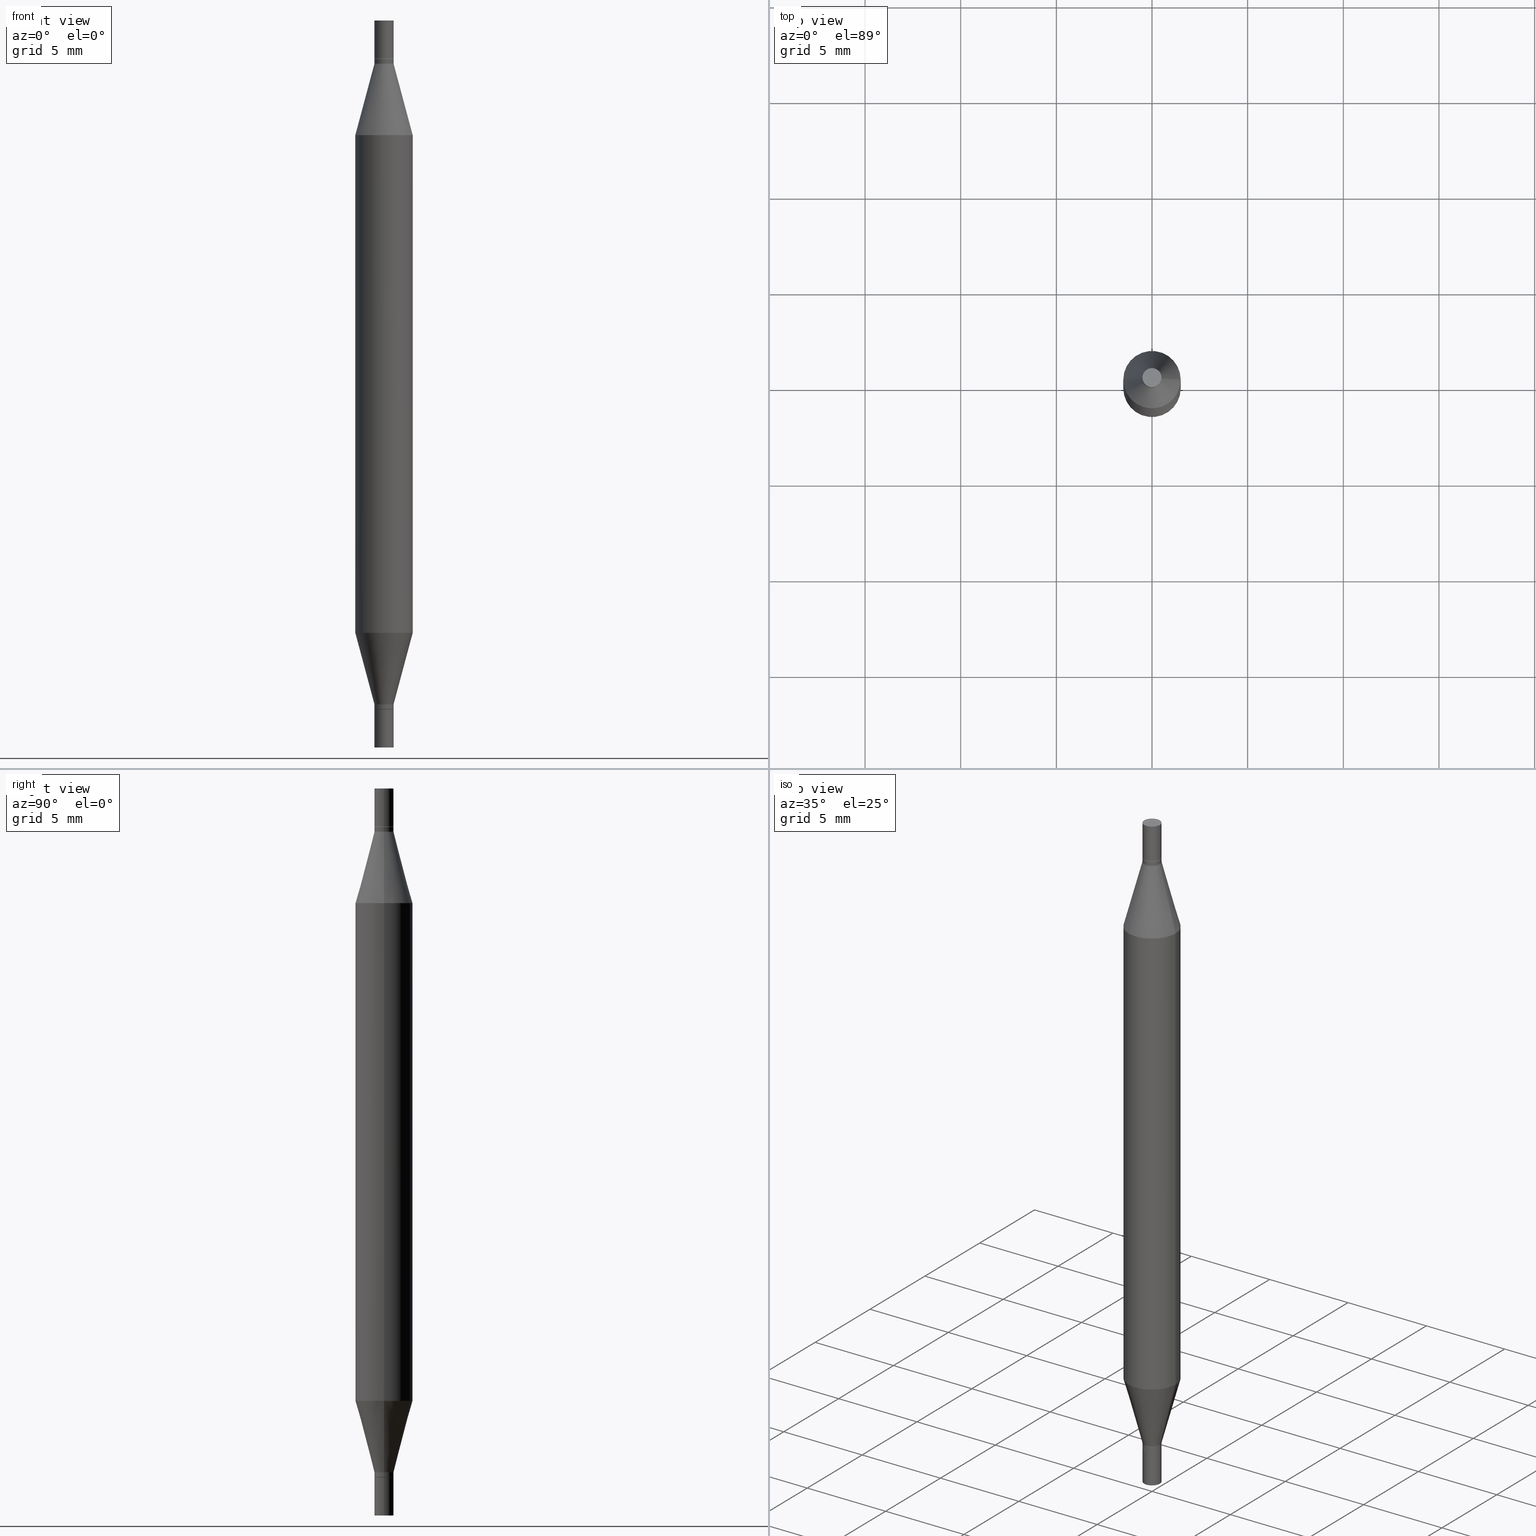
[diagram: canonical four-view strip — front | top / right | iso, engineering-drawing reading convention]
A machine part, canonical four-view strip (front | top / right | iso — engineering-drawing reading convention). The complete STEP part file that produces these views, byte-faithful:
ISO-10303-21;
HEADER;
FILE_DESCRIPTION (( 'STEP AP203' ),
    '1' );
FILE_NAME ('48926.STEP',
    '2024-03-04T16:12:57',
    ( '' ),
    ( '' ),
    'SwSTEP 2.0',
    'SolidWorks 2023',
    '' );
FILE_SCHEMA (( 'CONFIG_CONTROL_DESIGN' ));
ENDSEC;

DATA;
#1 = EDGE_LOOP ( 'NONE', ( #319, #634, #356, #835 ) ) ;
#2 = PERSON_AND_ORGANIZATION_ROLE ( 'creator' ) ;
#3 = DIRECTION ( 'NONE',  ( 1.000000000000000000, -6.982962677686242256E-15, 0.000000000000000000 ) ) ;
#4 = EDGE_CURVE ( 'NONE', #712, #501, #86, .T. ) ;
#5 = CIRCLE ( 'NONE', #799, 0.01969999999999975937 ) ;
#6 = AXIS2_PLACEMENT_3D ( 'NONE', #606, #622, #787 ) ;
#7 = CARTESIAN_POINT ( 'NONE',  ( 0.01969999999999975590, -1.375643647504177599E-16, 9.606068248317874107E-31 ) ) ;
#8 = CONICAL_SURFACE ( 'NONE', #895, 0.01969999999999975937, 0.2617993877991502960 ) ;
#9 = LOCAL_TIME ( 11, 12, 57.00000000000000000, #602 ) ;
#10 = APPROVAL_STATUS ( 'not_yet_approved' ) ;
#11 = CARTESIAN_POINT ( 'NONE',  ( 3.658665880933582389E-29, 2.421857640538043390E-19, 0.000000000000000000 ) ) ;
#12 = CC_DESIGN_PERSON_AND_ORGANIZATION_ASSIGNMENT ( #390, #80, ( #897 ) ) ;
#13 = EDGE_LOOP ( 'NONE', ( #785, #664, #911, #597 ) ) ;
#14 = ORIENTED_EDGE ( 'NONE', *, *, #551, .F. ) ;
#15 = COORDINATED_UNIVERSAL_TIME_OFFSET ( 5, 0, .BEHIND. ) ;
#16 = DIRECTION ( 'NONE',  ( 2.445468806185136597E-29, 3.491805094961124077E-15, 1.000000000000000000 ) ) ;
#17 = DIRECTION ( 'NONE',  ( -2.445468806185136597E-29, -3.491805094961124077E-15, -1.000000000000000000 ) ) ;
#18 = CC_DESIGN_PERSON_AND_ORGANIZATION_ASSIGNMENT ( #71, #729, ( #757 ) ) ;
#19 = DIRECTION ( 'NONE',  ( 1.000000000000000000, -6.982962677686266711E-15, 4.876176775795936353E-29 ) ) ;
#20 = ORIENTED_EDGE ( 'NONE', *, *, #281, .F. ) ;
#21 = CARTESIAN_POINT ( 'NONE',  ( 3.464984751483720302E-29, -2.763087777568659992E-16, -0.07919999999999979834 ) ) ;
#22 = EDGE_LOOP ( 'NONE', ( #614, #550, #37, #508 ) ) ;
#23 = AXIS2_PLACEMENT_3D ( 'NONE', #560, #32, #926 ) ;
#24 = ORIENTED_EDGE ( 'NONE', *, *, #44, .F. ) ;
#25 = CARTESIAN_POINT ( 'NONE',  ( 3.466207485886812543E-29, -2.745628752093862590E-16, -0.07869999999999989504 ) ) ;
#26 = CARTESIAN_POINT ( 'NONE',  ( 0.01969999999999982529, -1.375643647504182283E-16, 9.606068248317909140E-31 ) ) ;
#27 = DIRECTION ( 'NONE',  ( 1.000000000000000000, -6.982962677686265922E-15, 0.000000000000000000 ) ) ;
#28 = FACE_OUTER_BOUND ( 'NONE', #791, .T. ) ;
#29 = EDGE_CURVE ( 'NONE', #942, #224, #388, .T. ) ;
#30 = DIRECTION ( 'NONE',  ( 1.000000000000000000, -6.982962677686265922E-15, 2.260776888683160832E-33 ) ) ;
#31 = ORIENTED_EDGE ( 'NONE', *, *, #362, .F. ) ;
#32 = DIRECTION ( 'NONE',  ( -2.445468806185136597E-29, 3.491481338843145583E-15, 1.000000000000000000 ) ) ;
#33 = DIRECTION ( 'NONE',  ( 1.000000000000000000, -6.982962677686267499E-15, 0.000000000000000000 ) ) ;
#34 = ADVANCED_FACE ( 'NONE', ( #395 ), #340, .T. ) ;
#35 = DIRECTION ( 'NONE',  ( -2.445468806185136597E-29, 3.491481338843145583E-15, 1.000000000000000000 ) ) ;
#36 = CIRCLE ( 'NONE', #570, 0.01969999999999982529 ) ;
#37 = ORIENTED_EDGE ( 'NONE', *, *, #102, .T. ) ;
#38 = LINE ( 'NONE', #695, #290 ) ;
#39 = AXIS2_PLACEMENT_3D ( 'NONE', #803, #725, #189 ) ;
#40 = CARTESIAN_POINT ( 'NONE',  ( 3.658665880933582389E-29, 2.421857640538043390E-19, 0.000000000000000000 ) ) ;
#41 = DIRECTION ( 'NONE',  ( 1.000000000000000000, -6.982962677686269866E-15, 0.000000000000000000 ) ) ;
#42 = CARTESIAN_POINT ( 'NONE',  ( 3.441019157183105205E-29, -4.912863391886189403E-15, -1.407099999999999795 ) ) ;
#43 = ORIENTED_EDGE ( 'NONE', *, *, #64, .F. ) ;
#44 = EDGE_CURVE ( 'NONE', #338, #74, #947, .T. ) ;
#45 = ORIENTED_EDGE ( 'NONE', *, *, #295, .T. ) ;
#46 = EDGE_CURVE ( 'NONE', #279, #292, #483, .T. ) ;
#47 = CARTESIAN_POINT ( 'NONE',  ( 3.466207485886812543E-29, -2.745628752093862590E-16, -0.07869999999999989504 ) ) ;
#48 = DIRECTION ( 'NONE',  ( -2.438088387897959208E-29, -3.491805094961123683E-15, -1.000000000000000000 ) ) ;
#49 = CARTESIAN_POINT ( 'NONE',  ( -0.01969999999999982529, -5.088695606251185498E-15, -1.496099999999999985 ) ) ;
#50 = ORIENTED_EDGE ( 'NONE', *, *, #188, .T. ) ;
#51 = VECTOR ( 'NONE', #303, 39.37007874015748143 ) ;
#52 = CIRCLE ( 'NONE', #6, 0.01919999999999982485 ) ;
#53 = AXIS2_PLACEMENT_3D ( 'NONE', #973, #719, #428 ) ;
#54 = VERTEX_POINT ( 'NONE', #554 ) ;
#55 = FACE_OUTER_BOUND ( 'NONE', #286, .T. ) ;
#56 = DIRECTION ( 'NONE',  ( 1.000000000000000000, -6.982962677686242256E-15, 0.000000000000000000 ) ) ;
#57 = EDGE_LOOP ( 'NONE', ( #925, #343 ) ) ;
#58 = VERTEX_POINT ( 'NONE', #790 ) ;
#59 = DIRECTION ( 'NONE',  ( 1.000000000000000000, -6.982962677686291165E-15, 0.000000000000000000 ) ) ;
#60 = EDGE_CURVE ( 'NONE', #420, #501, #144, .T. ) ;
#61 = DIRECTION ( 'NONE',  ( 2.445468806185136597E-29, 3.491805094961124077E-15, 1.000000000000000000 ) ) ;
#62 = CARTESIAN_POINT ( 'NONE',  ( -0.01919999999999982485, -4.812401444410337122E-15, -1.417399999999999993 ) ) ;
#63 = APPLICATION_PROTOCOL_DEFINITION ( 'international standard', 'config_control_design', 1994, #283 ) ;
#64 = EDGE_CURVE ( 'NONE', #963, #164, #249, .T. ) ;
#65 = VECTOR ( 'NONE', #741, 39.37007874015748143 ) ;
#66 = CIRCLE ( 'NONE', #495, 0.01969999999999975937 ) ;
#67 = AXIS2_PLACEMENT_3D ( 'NONE', #808, #657, #568 ) ;
#68 = CC_DESIGN_PERSON_AND_ORGANIZATION_ASSIGNMENT ( #821, #444, ( #720 ) ) ;
#69 = AXIS2_PLACEMENT_3D ( 'NONE', #797, #647, #297 ) ;
#70 = EDGE_LOOP ( 'NONE', ( #877, #547, #312, #404 ) ) ;
#71 = PERSON_AND_ORGANIZATION ( #536, #366 ) ;
#72 = CARTESIAN_POINT ( 'NONE',  ( 0.000000000000000000, -5.223847416807283040E-15, -1.496099999999999985 ) ) ;
#73 = CARTESIAN_POINT ( 'NONE',  ( 3.658665880933582389E-29, -5.223605231043229660E-15, -1.496099999999999985 ) ) ;
#74 = VERTEX_POINT ( 'NONE', #661 ) ;
#75 = ADVANCED_FACE ( 'NONE', ( #133 ), #507, .F. ) ;
#76 = DATE_TIME_ROLE ( 'creation_date' ) ;
#77 = CARTESIAN_POINT ( 'NONE',  ( -0.05905000000000001914, -4.818735010038875060E-15, -1.496099999999999985 ) ) ;
#78 = DIRECTION ( 'NONE',  ( 1.000000000000000000, -6.982962677686265922E-15, 4.876176775795935793E-29 ) ) ;
#79 = ORIENTED_EDGE ( 'NONE', *, *, #888, .F. ) ;
#80 = PERSON_AND_ORGANIZATION_ROLE ( 'design_supplier' ) ;
#81 = CARTESIAN_POINT ( 'NONE',  ( 3.466207485886812543E-29, -2.745628752093862590E-16, -0.07869999999999989504 ) ) ;
#82 = CLOSED_SHELL ( 'NONE', ( #331, #587, #414, #523 ) ) ;
#83 = AXIS2_PLACEMENT_3D ( 'NONE', #116, #979, #323 ) ;
#84 = EDGE_LOOP ( 'NONE', ( #92, #134, #594, #561 ) ) ;
#85 = AXIS2_PLACEMENT_3D ( 'NONE', #956, #642, #659 ) ;
#86 = LINE ( 'NONE', #466, #481 ) ;
#87 = PERSON_AND_ORGANIZATION ( #536, #366 ) ;
#88 = ADVANCED_FACE ( 'NONE', ( #738 ), #311, .T. ) ;
#89 = ORIENTED_EDGE ( 'NONE', *, *, #578, .T. ) ;
#90 = DIRECTION ( 'NONE',  ( -0.2588190451025216277, -1.597197180879712157E-15, -0.9659258262890679791 ) ) ;
#91 = DIRECTION ( 'NONE',  ( -2.445468806185136877E-29, -3.491805094961123683E-15, -1.000000000000000000 ) ) ;
#92 = ORIENTED_EDGE ( 'NONE', *, *, #515, .F. ) ;
#93 = APPROVAL_DATE_TIME ( #836, #178 ) ;
#94 = ADVANCED_FACE ( 'NONE', ( #674 ), #723, .F. ) ;
#95 = AXIS2_PLACEMENT_3D ( 'NONE', #146, #966, #901 ) ;
#96 = AXIS2_PLACEMENT_3D ( 'NONE', #824, #212, #728 ) ;
#97 = VECTOR ( 'NONE', #108, 39.37007874015748143 ) ;
#98 = ORIENTED_EDGE ( 'NONE', *, *, #4, .F. ) ;
#99 = CIRCLE ( 'NONE', #954, 0.05905000000000001914 ) ;
#100 = LOCAL_TIME ( 11, 12, 57.00000000000000000, #529 ) ;
#101 = LINE ( 'NONE', #26, #593 ) ;
#102 = EDGE_CURVE ( 'NONE', #965, #282, #153, .T. ) ;
#103 = DIRECTION ( 'NONE',  ( -2.438088387897959208E-29, -3.491805094961123683E-15, -1.000000000000000000 ) ) ;
#104 = ORIENTED_EDGE ( 'NONE', *, *, #531, .T. ) ;
#105 = CARTESIAN_POINT ( 'NONE',  ( 3.464984751483720302E-29, -2.763087777568659992E-16, -0.07919999999999979834 ) ) ;
#106 = EDGE_CURVE ( 'NONE', #965, #413, #713, .T. ) ;
#107 = VERTEX_POINT ( 'NONE', #519 ) ;
#108 = DIRECTION ( 'NONE',  ( -2.445468806185136877E-29, 3.491481338843145188E-15, 1.000000000000000000 ) ) ;
#109 = CYLINDRICAL_SURFACE ( 'NONE', #607, 0.01969999999999975590 ) ;
#110 = VECTOR ( 'NONE', #654, 39.37007874015748143 ) ;
#111 = EDGE_LOOP ( 'NONE', ( #709, #689, #762, #662 ) ) ;
#112 = AXIS2_PLACEMENT_3D ( 'NONE', #72, #672, #3 ) ;
#113 = AXIS2_PLACEMENT_3D ( 'NONE', #81, #461, #599 ) ;
#114 = FACE_OUTER_BOUND ( 'NONE', #904, .T. ) ;
#115 = PLANE ( 'NONE',  #349 ) ;
#116 = CARTESIAN_POINT ( 'NONE',  ( 3.466207485886812543E-29, -2.745628752093862590E-16, -0.07869999999999989504 ) ) ;
#117 = ADVANCED_FACE ( 'NONE', ( #589 ), #817, .T. ) ;
#118 = EDGE_CURVE ( 'NONE', #764, #584, #5, .T. ) ;
#119 = ORIENTED_EDGE ( 'NONE', *, *, #310, .F. ) ;
#120 = DIRECTION ( 'NONE',  ( 1.000000000000000000, -6.982962677686265922E-15, 0.000000000000000000 ) ) ;
#121 = CYLINDRICAL_SURFACE ( 'NONE', #970, 0.01969999999999975590 ) ;
#122 = CARTESIAN_POINT ( 'NONE',  ( 0.05905000000000001914, -4.812461658731569847E-15, -1.260243800722164131 ) ) ;
#123 = EDGE_LOOP ( 'NONE', ( #778, #592 ) ) ;
#124 = ORIENTED_EDGE ( 'NONE', *, *, #752, .F. ) ;
#125 = EDGE_CURVE ( 'NONE', #430, #58, #667, .T. ) ;
#126 = ORIENTED_EDGE ( 'NONE', *, *, #435, .F. ) ;
#127 = CIRCLE ( 'NONE', #816, 0.01969999999999975937 ) ;
#128 = APPLICATION_PROTOCOL_DEFINITION ( 'international standard', 'config_control_design', 1994, #131 ) ;
#129 = AXIS2_PLACEMENT_3D ( 'NONE', #534, #842, #169 ) ;
#130 = CARTESIAN_POINT ( 'NONE',  ( 0.000000000000000000, -5.223847416807283040E-15, -1.496099999999999985 ) ) ;
#131 = APPLICATION_CONTEXT ( 'configuration controlled 3d designs of mechanical parts and assemblies' ) ;
#132 = CIRCLE ( 'NONE', #53, 0.05905000000000001914 ) ;
#133 = FACE_OUTER_BOUND ( 'NONE', #123, .T. ) ;
#134 = ORIENTED_EDGE ( 'NONE', *, *, #952, .T. ) ;
#135 = LINE ( 'NONE', #62, #883 ) ;
#136 = EDGE_CURVE ( 'NONE', #573, #175, #727, .T. ) ;
#137 =( CONVERSION_BASED_UNIT ( 'INCH', #968 ) LENGTH_UNIT ( ) NAMED_UNIT ( #582 ) );
#138 = CARTESIAN_POINT ( 'NONE',  ( -0.01969999999999975937, -1.582668121660786430E-16, -0.08900000000000006517 ) ) ;
#139 = EDGE_CURVE ( 'NONE', #501, #950, #500, .T. ) ;
#140 = CARTESIAN_POINT ( 'NONE',  ( 0.01969999999999982529, -5.361411781557701466E-15, -1.496099999999999985 ) ) ;
#141 = CARTESIAN_POINT ( 'NONE',  ( 3.464984751483720302E-29, -2.763087777568659992E-16, -0.07919999999999979834 ) ) ;
#142 = CARTESIAN_POINT ( 'NONE',  ( 3.466207485886812543E-29, -4.948825649676274743E-15, -1.417399999999999993 ) ) ;
#143 = DIRECTION ( 'NONE',  ( 2.445468806185136597E-29, 3.491805094961124077E-15, 1.000000000000000000 ) ) ;
#144 = CIRCLE ( 'NONE', #623, 0.01969999999999974896 ) ;
#145 = AXIS2_PLACEMENT_3D ( 'NONE', #577, #431, #788 ) ;
#146 = CARTESIAN_POINT ( 'NONE',  ( 0.000000000000000000, -5.223847416807283040E-15, -1.496099999999999985 ) ) ;
#147 = DIRECTION ( 'NONE',  ( -2.438088387897960049E-29, 3.491481338843145188E-15, 1.000000000000000000 ) ) ;
#148 = EDGE_CURVE ( 'NONE', #544, #812, #538, .T. ) ;
#149 = DIRECTION ( 'NONE',  ( 1.000000000000000000, -6.982962677686242256E-15, 0.000000000000000000 ) ) ;
#150 = CARTESIAN_POINT ( 'NONE',  ( 0.01969999999999974896, -4.138731425072841289E-16, -0.07919999999999979834 ) ) ;
#151 = DIRECTION ( 'NONE',  ( -2.445468806185136597E-29, -3.491805094961124077E-15, -1.000000000000000000 ) ) ;
#152 = DIRECTION ( 'NONE',  ( 1.000000000000000000, -6.982962677686265922E-15, 2.260776888683160832E-33 ) ) ;
#153 = LINE ( 'NONE', #583, #51 ) ;
#154 = CARTESIAN_POINT ( 'NONE',  ( -0.01969999999999974896, -1.411569672007690239E-16, -0.07919999999999979834 ) ) ;
#155 = ORIENTED_EDGE ( 'NONE', *, *, #754, .F. ) ;
#156 = EDGE_CURVE ( 'NONE', #685, #282, #127, .T. ) ;
#157 = CARTESIAN_POINT ( 'NONE',  ( -0.05905000000000001914, -1.312449747268627593E-15, -0.7480499999999999927 ) ) ;
#158 = CARTESIAN_POINT ( 'NONE',  ( 0.01919999999999982485, -4.086357586209613322E-16, -0.07869999999999989504 ) ) ;
#159 = CIRCLE ( 'NONE', #455, 0.05905000000000001914 ) ;
#160 = AXIS2_PLACEMENT_3D ( 'NONE', #469, #401, #804 ) ;
#161 = ORIENTED_EDGE ( 'NONE', *, *, #692, .T. ) ;
#162 = ORIENTED_EDGE ( 'NONE', *, *, #385, .F. ) ;
#163 = DIRECTION ( 'NONE',  ( 0.2588190451025216277, -5.180148453816008779E-15, -0.9659258262890679791 ) ) ;
#164 = VERTEX_POINT ( 'NONE', #378 ) ;
#165 = DATE_TIME_ROLE ( 'classification_date' ) ;
#166 = ORIENTED_EDGE ( 'NONE', *, *, #786, .T. ) ;
#167 = DATE_AND_TIME ( #199, #658 ) ;
#168 = DIRECTION ( 'NONE',  ( -2.445468806185136877E-29, -3.491805094961123683E-15, -1.000000000000000000 ) ) ;
#169 = DIRECTION ( 'NONE',  ( 1.000000000000000000, -6.982962677686265922E-15, 0.000000000000000000 ) ) ;
#170 = VECTOR ( 'NONE', #627, 39.37007874015748143 ) ;
#171 = VECTOR ( 'NONE', #740, 39.37007874015748143 ) ;
#172 = PLANE ( 'NONE',  #555 ) ;
#173 = EDGE_CURVE ( 'NONE', #336, #963, #309, .T. ) ;
#174 = AXIS2_PLACEMENT_3D ( 'NONE', #696, #254, #938 ) ;
#175 = VERTEX_POINT ( 'NONE', #407 ) ;
#176 = CARTESIAN_POINT ( 'NONE',  ( 1.829332940466791194E-29, -2.611802615521614830E-15, -0.7480499999999999927 ) ) ;
#177 = ORIENTED_EDGE ( 'NONE', *, *, #869, .T. ) ;
#178 = APPROVAL ( #453, 'UNSPECIFIED' ) ;
#179 = ORIENTED_EDGE ( 'NONE', *, *, #503, .T. ) ;
#180 = CARTESIAN_POINT ( 'NONE',  ( 0.01969999999999975590, -5.361411781557701466E-15, -1.496099999999999985 ) ) ;
#181 = EDGE_CURVE ( 'NONE', #336, #688, #36, .T. ) ;
#182 = ORIENTED_EDGE ( 'NONE', *, *, #663, .F. ) ;
#183 = ADVANCED_FACE ( 'NONE', ( #730 ), #372, .T. ) ;
#184 = DIRECTION ( 'NONE',  ( -2.445468806185136597E-29, 3.491481338843145583E-15, 1.000000000000000000 ) ) ;
#185 = EDGE_LOOP ( 'NONE', ( #400, #724, #556, #43 ) ) ;
#186 = FACE_OUTER_BOUND ( 'NONE', #859, .T. ) ;
#187 = AXIS2_PLACEMENT_3D ( 'NONE', #581, #143, #219 ) ;
#188 = EDGE_CURVE ( 'NONE', #282, #279, #758, .T. ) ;
#189 = DIRECTION ( 'NONE',  ( 1.000000000000000000, -6.982962677686270655E-15, 0.000000000000000000 ) ) ;
#190 = CC_DESIGN_APPROVAL ( #726, ( #897 ) ) ;
#191 = ORIENTED_EDGE ( 'NONE', *, *, #232, .F. ) ;
#192 = CARTESIAN_POINT ( 'NONE',  ( -0.01969999999999975937, -4.789994731501783196E-15, -1.407099999999999795 ) ) ;
#193 = DIRECTION ( 'NONE',  ( -0.000000000000000000, -3.491643216902134830E-15, -1.000000000000000000 ) ) ;
#194 = CYLINDRICAL_SURFACE ( 'NONE', #237, 0.05905000000000001914 ) ;
#195 = ADVANCED_FACE ( 'NONE', ( #321 ), #308, .T. ) ;
#196 = CARTESIAN_POINT ( 'NONE',  ( 0.01919999999999982485, -4.086357586209613322E-16, -0.07869999999999989504 ) ) ;
#197 = DIRECTION ( 'NONE',  ( -2.445468806185136877E-29, -3.491805094961123683E-15, -1.000000000000000000 ) ) ;
#198 = ORIENTED_EDGE ( 'NONE', *, *, #633, .F. ) ;
#199 = CALENDAR_DATE ( 2024, 4, 3 ) ;
#200 = FACE_OUTER_BOUND ( 'NONE', #369, .T. ) ;
#201 = ORIENTED_EDGE ( 'NONE', *, *, #633, .T. ) ;
#202 = EDGE_LOOP ( 'NONE', ( #155, #948, #363, #864 ) ) ;
#203 = EDGE_CURVE ( 'NONE', #764, #942, #900, .T. ) ;
#204 = CIRCLE ( 'NONE', #187, 0.01969999999999982529 ) ;
#205 = EDGE_CURVE ( 'NONE', #54, #449, #917, .T. ) ;
#206 = FACE_OUTER_BOUND ( 'NONE', #185, .T. ) ;
#207 = ORIENTED_EDGE ( 'NONE', *, *, #692, .F. ) ;
#208 = MANIFOLD_SOLID_BREP ( 'Combine1', #591 ) ;
#209 = FACE_OUTER_BOUND ( 'NONE', #826, .T. ) ;
#210 = DIRECTION ( 'NONE',  ( 1.000000000000000000, -6.982962677686269866E-15, 0.000000000000000000 ) ) ;
#211 = ORIENTED_EDGE ( 'NONE', *, *, #435, .T. ) ;
#212 = DIRECTION ( 'NONE',  ( -2.445468806185136597E-29, 3.491481338843145583E-15, 1.000000000000000000 ) ) ;
#213 = MANIFOLD_SOLID_BREP ( 'Body-Move/Copy2[1]', #509 ) ;
#214 = DIRECTION ( 'NONE',  ( -0.2588190451025216277, -1.597197180879712157E-15, -0.9659258262890679791 ) ) ;
#215 = EDGE_CURVE ( 'NONE', #413, #965, #220, .T. ) ;
#216 = ORIENTED_EDGE ( 'NONE', *, *, #374, .T. ) ;
#217 = CALENDAR_DATE ( 2024, 4, 3 ) ;
#218 = AXIS2_PLACEMENT_3D ( 'NONE', #487, #418, #447 ) ;
#219 = DIRECTION ( 'NONE',  ( 1.000000000000000000, -6.982962677686266711E-15, 2.260776888683160832E-33 ) ) ;
#220 = CIRCLE ( 'NONE', #482, 0.01969999999999974896 ) ;
#221 = AXIS2_PLACEMENT_3D ( 'NONE', #789, #193, #710 ) ;
#222 = AXIS2_PLACEMENT_3D ( 'NONE', #935, #645, #344 ) ;
#223 = CIRCLE ( 'NONE', #472, 0.01919999999999982485 ) ;
#224 = VERTEX_POINT ( 'NONE', #157 ) ;
#225 = DIRECTION ( 'NONE',  ( 1.000000000000000000, -6.982962677686269866E-15, 0.000000000000000000 ) ) ;
#226 = CARTESIAN_POINT ( 'NONE',  ( -0.01969999999999975937, -1.753766571313877937E-16, -0.08900000000000006517 ) ) ;
#227 = CARTESIAN_POINT ( 'NONE',  ( 3.466207485886812543E-29, -2.745628752093862590E-16, -0.07869999999999989504 ) ) ;
#228 = CARTESIAN_POINT ( 'NONE',  ( 0.01969999999999975937, -4.480928324379030713E-16, -0.08900000000000006517 ) ) ;
#229 = FACE_OUTER_BOUND ( 'NONE', #775, .T. ) ;
#230 = EDGE_LOOP ( 'NONE', ( #559, #402 ) ) ;
#231 = ADVANCED_FACE ( 'NONE', ( #753 ), #800, .T. ) ;
#232 = EDGE_CURVE ( 'NONE', #573, #279, #250, .T. ) ;
#233 = ORIENTED_EDGE ( 'NONE', *, *, #786, .F. ) ;
#234 = CARTESIAN_POINT ( 'NONE',  ( -0.01969999999999974896, -1.411569672007690239E-16, -0.07919999999999979834 ) ) ;
#235 = CARTESIAN_POINT ( 'NONE',  ( 3.441019157183105205E-29, -3.105284676874853360E-16, -0.08900000000000006517 ) ) ;
#236 = CLOSED_SHELL ( 'NONE', ( #650, #618, #574, #245, #94, #733, #476, #195, #231, #88 ) ) ;
#237 = AXIS2_PLACEMENT_3D ( 'NONE', #491, #355, #566 ) ;
#238 = APPROVAL_PERSON_ORGANIZATION ( #748, #726, #680 ) ;
#239 = VERTEX_POINT ( 'NONE', #393 ) ;
#240 = SECURITY_CLASSIFICATION_LEVEL ( 'unclassified' ) ;
#241 = EDGE_CURVE ( 'NONE', #420, #671, #924, .T. ) ;
#242 = EDGE_LOOP ( 'NONE', ( #359, #216, #742, #802 ) ) ;
#243 = PERSON_AND_ORGANIZATION_ROLE ( 'classification_officer' ) ;
#244 = FACE_OUTER_BOUND ( 'NONE', #934, .T. ) ;
#245 = ADVANCED_FACE ( 'NONE', ( #244 ), #639, .T. ) ;
#246 = EDGE_LOOP ( 'NONE', ( #350, #14, #489, #467 ) ) ;
#247 = CARTESIAN_POINT ( 'NONE',  ( 3.466207485886812543E-29, -4.948825649676274743E-15, -1.417399999999999993 ) ) ;
#248 = DIRECTION ( 'NONE',  ( -1.000000000000000000, 6.982962677686265922E-15, -4.876176775795935793E-29 ) ) ;
#249 = CIRCLE ( 'NONE', #96, 0.01969999999999982529 ) ;
#250 = CIRCLE ( 'NONE', #861, 0.05905000000000001914 ) ;
#251 = CARTESIAN_POINT ( 'NONE',  ( 3.466207485886812543E-29, -2.745628752093862590E-16, -0.07869999999999989504 ) ) ;
#252 = FACE_OUTER_BOUND ( 'NONE', #693, .T. ) ;
#253 = CIRCLE ( 'NONE', #410, 0.01969999999999974896 ) ;
#254 = DIRECTION ( 'NONE',  ( -2.445468806185136597E-29, 3.491481338843145583E-15, 1.000000000000000000 ) ) ;
#255 = ORIENTED_EDGE ( 'NONE', *, *, #118, .T. ) ;
#256 = CC_DESIGN_APPROVAL ( #543, ( #720 ) ) ;
#257 = CARTESIAN_POINT ( 'NONE',  ( 3.509744188999179135E-29, -2.130221531823299636E-16, 0.000000000000000000 ) ) ;
#258 = FACE_OUTER_BOUND ( 'NONE', #242, .T. ) ;
#259 = ORIENTED_EDGE ( 'NONE', *, *, #203, .T. ) ;
#260 = ADVANCED_FACE ( 'NONE', ( #928 ), #272, .T. ) ;
#261 = LINE ( 'NONE', #851, #605 ) ;
#262 = DIRECTION ( 'NONE',  ( 1.000000000000000000, -6.982962677686265133E-15, 0.000000000000000000 ) ) ;
#263 = CARTESIAN_POINT ( 'NONE',  ( 0.05905000000000001914, -1.235665638669832421E-15, -0.2358561992778358263 ) ) ;
#264 = CARTESIAN_POINT ( 'NONE',  ( 1.375643647504528889E-16, 0.01969999999999487786, -1.417399999999999993 ) ) ;
#265 = ORIENTED_EDGE ( 'NONE', *, *, #869, .F. ) ;
#266 = DIRECTION ( 'NONE',  ( 2.445468806185136597E-29, 3.491805094961124077E-15, 1.000000000000000000 ) ) ;
#267 = DIRECTION ( 'NONE',  ( 2.445468806185136597E-29, 3.491805094961124077E-15, 1.000000000000000000 ) ) ;
#268 = ADVANCED_FACE ( 'NONE', ( #337 ), #687, .F. ) ;
#269 = PRODUCT_DEFINITION_SHAPE ( 'NONE', 'NONE',  #720 ) ;
#270 = AXIS2_PLACEMENT_3D ( 'NONE', #610, #708, #876 ) ;
#271 = ORIENTED_EDGE ( 'NONE', *, *, #663, .T. ) ;
#272 = CONICAL_SURFACE ( 'NONE', #129, 0.01969999999999975937, 0.2617993877991502960 ) ;
#273 = AXIS2_PLACEMENT_3D ( 'NONE', #955, #275, #868 ) ;
#274 = FACE_OUTER_BOUND ( 'NONE', #967, .T. ) ;
#275 = DIRECTION ( 'NONE',  ( -2.445468806185136597E-29, -3.491805094961124077E-15, -1.000000000000000000 ) ) ;
#276 = EDGE_LOOP ( 'NONE', ( #397, #807, #255, #620 ) ) ;
#277 =( NAMED_UNIT ( * ) PLANE_ANGLE_UNIT ( ) SI_UNIT ( $, .RADIAN. ) );
#278 = DIRECTION ( 'NONE',  ( -2.445468806185136597E-29, 3.491481338843145583E-15, 1.000000000000000000 ) ) ;
#279 = VERTEX_POINT ( 'NONE', #263 ) ;
#280 = DIRECTION ( 'NONE',  ( -0.7071067811865656694, 2.382025595312421833E-15, -0.7071067811865294761 ) ) ;
#281 = EDGE_CURVE ( 'NONE', #58, #224, #676, .T. ) ;
#282 = VERTEX_POINT ( 'NONE', #643 ) ;
#283 = APPLICATION_CONTEXT ( 'configuration controlled 3d designs of mechanical parts and assemblies' ) ;
#284 = DIRECTION ( 'NONE',  ( -2.445468806185136597E-29, 3.491481338843145583E-15, 1.000000000000000000 ) ) ;
#285 = CARTESIAN_POINT ( 'NONE',  ( -0.01969999999999982529, -2.008534166568237157E-18, 4.896164301395442847E-31 ) ) ;
#286 = EDGE_LOOP ( 'NONE', ( #852, #670 ) ) ;
#287 = AXIS2_PLACEMENT_3D ( 'NONE', #588, #744, #517 ) ;
#288 = CARTESIAN_POINT ( 'NONE',  ( -0.05905000000000001914, -4.182092857840493725E-16, -0.2358561992778358263 ) ) ;
#289 = AXIS2_PLACEMENT_3D ( 'NONE', #894, #512, #932 ) ;
#290 = VECTOR ( 'NONE', #773, 39.37007874015748143 ) ;
#291 = DIRECTION ( 'NONE',  ( 0.2588190451025216277, -5.180148453816008779E-15, -0.9659258262890679791 ) ) ;
#292 = VERTEX_POINT ( 'NONE', #122 ) ;
#293 = DIRECTION ( 'NONE',  ( 1.000000000000000000, -6.982962677686265922E-15, 0.000000000000000000 ) ) ;
#294 = DIRECTION ( 'NONE',  ( -2.445468806185136597E-29, 3.491481338843145583E-15, 1.000000000000000000 ) ) ;
#295 = EDGE_CURVE ( 'NONE', #584, #430, #416, .T. ) ;
#296 = ORIENTED_EDGE ( 'NONE', *, *, #660, .F. ) ;
#297 = DIRECTION ( 'NONE',  ( 1.000000000000000000, -6.982962677686265922E-15, 0.000000000000000000 ) ) ;
#298 = CARTESIAN_POINT ( 'NONE',  ( -0.01969999999999974896, -4.807102990062116297E-15, -1.416900000000000048 ) ) ;
#299 = VERTEX_POINT ( 'NONE', #285 ) ;
#300 = ORIENTED_EDGE ( 'NONE', *, *, #374, .F. ) ;
#301 = APPROVAL_ROLE ( '' ) ;
#302 = CARTESIAN_POINT ( 'NONE',  ( 0.01969999999999982529, -1.373221789863644288E-16, 4.453730470705787514E-35 ) ) ;
#303 = DIRECTION ( 'NONE',  ( -2.445468806185136877E-29, -3.491805094961123683E-15, -1.000000000000000000 ) ) ;
#304 = ADVANCED_FACE ( 'NONE', ( #781 ), #115, .F. ) ;
#305 = ORIENTED_EDGE ( 'NONE', *, *, #795, .T. ) ;
#306 = CARTESIAN_POINT ( 'NONE',  ( 3.466207485886812543E-29, -2.745628752093862590E-16, -0.07869999999999989504 ) ) ;
#307 = AXIS2_PLACEMENT_3D ( 'NONE', #264, #711, #248 ) ;
#308 = CYLINDRICAL_SURFACE ( 'NONE', #951, 0.01969999999999975590 ) ;
#309 = LINE ( 'NONE', #361, #382 ) ;
#310 = EDGE_CURVE ( 'NONE', #282, #685, #847, .T. ) ;
#311 = CYLINDRICAL_SURFACE ( 'NONE', #454, 0.05905000000000001914 ) ;
#312 = ORIENTED_EDGE ( 'NONE', *, *, #125, .T. ) ;
#313 = ORIENTED_EDGE ( 'NONE', *, *, #156, .T. ) ;
#314 = PERSON_AND_ORGANIZATION ( #536, #366 ) ;
#315 = DIRECTION ( 'NONE',  ( 1.000000000000000000, -6.982962677686242256E-15, 0.000000000000000000 ) ) ;
#316 = ADVANCED_FACE ( 'NONE', ( #206 ), #866, .T. ) ;
#317 = EDGE_CURVE ( 'NONE', #175, #292, #159, .T. ) ;
#318 = ORIENTED_EDGE ( 'NONE', *, *, #940, .T. ) ;
#319 = ORIENTED_EDGE ( 'NONE', *, *, #857, .T. ) ;
#320 = APPROVAL_ROLE ( '' ) ;
#321 = FACE_OUTER_BOUND ( 'NONE', #246, .T. ) ;
#322 = ORIENTED_EDGE ( 'NONE', *, *, #488, .T. ) ;
#323 = DIRECTION ( 'NONE',  ( 1.000000000000000000, -6.982962677686266711E-15, 0.000000000000000000 ) ) ;
#324 = CARTESIAN_POINT ( 'NONE',  ( -0.01919999999999982485, -4.809752217236225921E-15, -1.417399999999999993 ) ) ;
#325 = AXIS2_PLACEMENT_3D ( 'NONE', #441, #151, #371 ) ;
#326 = CIRCLE ( 'NONE', #160, 0.01919999999999982485 ) ;
#327 = APPROVAL_PERSON_ORGANIZATION ( #460, #178, #320 ) ;
#328 = ORIENTED_EDGE ( 'NONE', *, *, #920, .T. ) ;
#329 = VERTEX_POINT ( 'NONE', #873 ) ;
#330 = CALENDAR_DATE ( 2024, 4, 3 ) ;
#331 = ADVANCED_FACE ( 'NONE', ( #200 ), #798, .T. ) ;
#332 = CYLINDRICAL_SURFACE ( 'NONE', #39, 0.05905000000000001914 ) ;
#333 = DIRECTION ( 'NONE',  ( -2.445468806185136597E-29, -3.491805094961124077E-15, -1.000000000000000000 ) ) ;
#334 = PLANE ( 'NONE',  #703 ) ;
#335 = DIRECTION ( 'NONE',  ( 1.000000000000000000, -6.982962677686265922E-15, 0.000000000000000000 ) ) ;
#336 = VERTEX_POINT ( 'NONE', #751 ) ;
#337 = FACE_OUTER_BOUND ( 'NONE', #57, .T. ) ;
#338 = VERTEX_POINT ( 'NONE', #158 ) ;
#339 = DIRECTION ( 'NONE',  ( -2.438088387897959208E-29, -3.491805094961123683E-15, -1.000000000000000000 ) ) ;
#340 = CONICAL_SURFACE ( 'NONE', #270, 0.01919999999999982485, 0.7853981633974739252 ) ;
#341 = VECTOR ( 'NONE', #214, 39.37007874015748143 ) ;
#342 = CIRCLE ( 'NONE', #820, 0.01969999999999982529 ) ;
#343 = ORIENTED_EDGE ( 'NONE', *, *, #952, .F. ) ;
#344 = DIRECTION ( 'NONE',  ( 1.000000000000000000, -6.982962677686266711E-15, 0.000000000000000000 ) ) ;
#345 = ADVANCED_FACE ( 'NONE', ( #229 ), #936, .T. ) ;
#346 = ORIENTED_EDGE ( 'NONE', *, *, #493, .T. ) ;
#347 = CARTESIAN_POINT ( 'NONE',  ( 0.000000000000000000, 0.000000000000000000, 0.000000000000000000 ) ) ;
#348 = ORIENTED_EDGE ( 'NONE', *, *, #281, .T. ) ;
#349 = AXIS2_PLACEMENT_3D ( 'NONE', #636, #48, #949 ) ;
#350 = ORIENTED_EDGE ( 'NONE', *, *, #922, .F. ) ;
#351 = CONICAL_SURFACE ( 'NONE', #23, 0.01919999999999982485, 0.7853981633974739252 ) ;
#352 = DIRECTION ( 'NONE',  ( -2.445468806185136597E-29, -3.491805094961124077E-15, -1.000000000000000000 ) ) ;
#353 = DATE_AND_TIME ( #217, #609 ) ;
#354 = ADVANCED_FACE ( 'NONE', ( #28 ), #946, .F. ) ;
#355 = DIRECTION ( 'NONE',  ( -2.445468806185136597E-29, -3.491805094961124077E-15, -1.000000000000000000 ) ) ;
#356 = ORIENTED_EDGE ( 'NONE', *, *, #940, .F. ) ;
#357 = LINE ( 'NONE', #494, #849 ) ;
#358 = ORIENTED_EDGE ( 'NONE', *, *, #421, .T. ) ;
#359 = ORIENTED_EDGE ( 'NONE', *, *, #503, .F. ) ;
#360 = DIRECTION ( 'NONE',  ( -0.7071067811865656694, 7.493145998870420424E-15, 0.7071067811865294761 ) ) ;
#361 = CARTESIAN_POINT ( 'NONE',  ( -0.01969999999999982529, 1.399769189447384952E-16, -9.690302127802078423E-31 ) ) ;
#362 = EDGE_CURVE ( 'NONE', #584, #764, #765, .T. ) ;
#363 = ORIENTED_EDGE ( 'NONE', *, *, #752, .T. ) ;
#364 = APPROVAL_STATUS ( 'not_yet_approved' ) ;
#365 = AXIS2_PLACEMENT_3D ( 'NONE', #227, #16, #409 ) ;
#366 = ORGANIZATION ( 'UNSPECIFIED', 'UNSPECIFIED', '' ) ;
#367 = ORIENTED_EDGE ( 'NONE', *, *, #616, .F. ) ;
#368 = CC_DESIGN_DATE_AND_TIME_ASSIGNMENT ( #167, #76, ( #720 ) ) ;
#369 = EDGE_LOOP ( 'NONE', ( #296, #177, #211, #182 ) ) ;
#370 = PERSON_AND_ORGANIZATION ( #536, #366 ) ;
#371 = DIRECTION ( 'NONE',  ( 1.000000000000000000, -6.982962677686242256E-15, 0.000000000000000000 ) ) ;
#372 = CYLINDRICAL_SURFACE ( 'NONE', #287, 0.01969999999999975590 ) ;
#373 = FACE_OUTER_BOUND ( 'NONE', #84, .T. ) ;
#374 = EDGE_CURVE ( 'NONE', #671, #950, #66, .T. ) ;
#375 = CARTESIAN_POINT ( 'NONE',  ( 0.000000000000000000, -5.223847416807283040E-15, -1.496099999999999985 ) ) ;
#376 = ADVANCED_BREP_SHAPE_REPRESENTATION ( '48926', ( #213, #858, #535, #548, #208, #542 ), #717 ) ;
#377 = CARTESIAN_POINT ( 'NONE',  ( 0.05905000000000001914, -1.235665638669832421E-15, -0.2358561992778358263 ) ) ;
#378 = CARTESIAN_POINT ( 'NONE',  ( 0.01969999999999982529, -5.086390014426692380E-15, -1.417399999999999993 ) ) ;
#379 = DIRECTION ( 'NONE',  ( 1.000000000000000000, -6.982962677686270655E-15, 0.000000000000000000 ) ) ;
#380 = ORIENTED_EDGE ( 'NONE', *, *, #125, .F. ) ;
#381 = CARTESIAN_POINT ( 'NONE',  ( -0.01969999999999982529, -2.008534166568237157E-18, -0.07869999999999989504 ) ) ;
#382 = VECTOR ( 'NONE', #679, 39.37007874015748143 ) ;
#383 = LINE ( 'NONE', #907, #863 ) ;
#384 = VECTOR ( 'NONE', #291, 39.37007874015748143 ) ;
#385 = EDGE_CURVE ( 'NONE', #528, #107, #747, .T. ) ;
#386 = VECTOR ( 'NONE', #865, 39.37007874015748143 ) ;
#387 = AXIS2_PLACEMENT_3D ( 'NONE', #42, #844, #335 ) ;
#388 = LINE ( 'NONE', #912, #675 ) ;
#389 = CYLINDRICAL_SURFACE ( 'NONE', #553, 0.01969999999999982529 ) ;
#390 = PERSON_AND_ORGANIZATION ( #536, #366 ) ;
#391 = DIRECTION ( 'NONE',  ( 2.445468806185136597E-29, 3.491805094961124077E-15, 1.000000000000000000 ) ) ;
#392 = DIRECTION ( 'NONE',  ( -2.445468806185136597E-29, -3.491805094961124077E-15, -1.000000000000000000 ) ) ;
#393 = CARTESIAN_POINT ( 'NONE',  ( 0.01969999999999982529, -1.373221789863644288E-16, 4.453730470705787514E-35 ) ) ;
#394 = EDGE_CURVE ( 'NONE', #746, #598, #52, .T. ) ;
#395 = FACE_OUTER_BOUND ( 'NONE', #202, .T. ) ;
#396 = EDGE_CURVE ( 'NONE', #688, #164, #101, .T. ) ;
#397 = ORIENTED_EDGE ( 'NONE', *, *, #795, .F. ) ;
#398 = APPROVAL_PERSON_ORGANIZATION ( #370, #543, #301 ) ;
#399 = CC_DESIGN_DATE_AND_TIME_ASSIGNMENT ( #743, #165, ( #736 ) ) ;
#400 = ORIENTED_EDGE ( 'NONE', *, *, #173, .F. ) ;
#401 = DIRECTION ( 'NONE',  ( -2.445468806185136597E-29, 3.491481338843145583E-15, 1.000000000000000000 ) ) ;
#402 = ORIENTED_EDGE ( 'NONE', *, *, #205, .T. ) ;
#403 = DIRECTION ( 'NONE',  ( -0.000000000000000000, -3.491643216902134830E-15, -1.000000000000000000 ) ) ;
#404 = ORIENTED_EDGE ( 'NONE', *, *, #578, .F. ) ;
#405 = DIRECTION ( 'NONE',  ( -2.445468806185136877E-29, -3.491805094961123683E-15, -1.000000000000000000 ) ) ;
#406 = EDGE_CURVE ( 'NONE', #329, #825, #261, .T. ) ;
#407 = CARTESIAN_POINT ( 'NONE',  ( -0.05905000000000001914, -2.206690208753205666E-15, -1.260243800722164131 ) ) ;
#408 = CONICAL_SURFACE ( 'NONE', #969, 0.01919999999999982485, 0.7853981633974739252 ) ;
#409 = DIRECTION ( 'NONE',  ( 1.000000000000000000, -6.982962677686265133E-15, 0.000000000000000000 ) ) ;
#410 = AXIS2_PLACEMENT_3D ( 'NONE', #518, #691, #41 ) ;
#411 = EDGE_LOOP ( 'NONE', ( #424, #485 ) ) ;
#412 = CARTESIAN_POINT ( 'NONE',  ( -0.01919999999999982485, -1.428413136521740543E-16, -0.07869999999999989504 ) ) ;
#413 = VERTEX_POINT ( 'NONE', #154 ) ;
#414 = ADVANCED_FACE ( 'NONE', ( #962 ), #625, .T. ) ;
#415 = LINE ( 'NONE', #452, #937 ) ;
#416 = LINE ( 'NONE', #648, #384 ) ;
#417 = UNCERTAINTY_MEASURE_WITH_UNIT (LENGTH_MEASURE( 1.000000000000000082E-05 ), #137, 'distance_accuracy_value', 'NONE');
#418 = DIRECTION ( 'NONE',  ( 0.000000000000000000, 3.491643216902134435E-15, 1.000000000000000000 ) ) ;
#419 = FACE_OUTER_BOUND ( 'NONE', #794, .T. ) ;
#420 = VERTEX_POINT ( 'NONE', #298 ) ;
#421 = EDGE_CURVE ( 'NONE', #54, #812, #445, .T. ) ;
#422 = DIRECTION ( 'NONE',  ( 1.000000000000000000, -6.982962677686265133E-15, 0.000000000000000000 ) ) ;
#423 = DIRECTION ( 'NONE',  ( 1.000000000000000000, -6.982962677686266711E-15, 4.876176775795936353E-29 ) ) ;
#424 = ORIENTED_EDGE ( 'NONE', *, *, #827, .T. ) ;
#425 = AXIS2_PLACEMENT_3D ( 'NONE', #25, #352, #629 ) ;
#426 = ORIENTED_EDGE ( 'NONE', *, *, #446, .F. ) ;
#427 = AXIS2_PLACEMENT_3D ( 'NONE', #251, #910, #683 ) ;
#428 = DIRECTION ( 'NONE',  ( 1.000000000000000000, -6.982962677686266711E-15, 0.000000000000000000 ) ) ;
#429 = LINE ( 'NONE', #140, #678 ) ;
#430 = VERTEX_POINT ( 'NONE', #377 ) ;
#431 = DIRECTION ( 'NONE',  ( 2.445468806185136597E-29, 3.491805094961124077E-15, 1.000000000000000000 ) ) ;
#432 = ADVANCED_FACE ( 'NONE', ( #665 ), #586, .T. ) ;
#433 = EDGE_LOOP ( 'NONE', ( #705, #975 ) ) ;
#434 = DIRECTION ( 'NONE',  ( 1.000000000000000000, -6.982962677686269866E-15, 0.000000000000000000 ) ) ;
#435 = EDGE_CURVE ( 'NONE', #107, #528, #539, .T. ) ;
#436 = DIRECTION ( 'NONE',  ( -2.445468806185136597E-29, 3.491481338843145583E-15, 1.000000000000000000 ) ) ;
#437 = AXIS2_PLACEMENT_3D ( 'NONE', #980, #571, #884 ) ;
#438 =( NAMED_UNIT ( * ) SI_UNIT ( $, .STERADIAN. ) SOLID_ANGLE_UNIT ( ) );
#439 = AXIS2_PLACEMENT_3D ( 'NONE', #792, #266, #881 ) ;
#440 = EDGE_CURVE ( 'NONE', #449, #54, #204, .T. ) ;
#441 = CARTESIAN_POINT ( 'NONE',  ( 0.000000000000000000, -5.223847416807283040E-15, -1.496099999999999985 ) ) ;
#442 = AXIS2_PLACEMENT_3D ( 'NONE', #47, #779, #422 ) ;
#443 = ORIENTED_EDGE ( 'NONE', *, *, #29, .T. ) ;
#444 = PERSON_AND_ORGANIZATION_ROLE ( 'creator' ) ;
#445 = LINE ( 'NONE', #823, #171 ) ;
#446 = EDGE_CURVE ( 'NONE', #685, #573, #890, .T. ) ;
#447 = DIRECTION ( 'NONE',  ( 0.000000000000000000, 1.000000000000000000, -3.491643216902134435E-15 ) ) ;
#448 = DIRECTION ( 'NONE',  ( 2.445468806185136597E-29, 3.491805094961124077E-15, 1.000000000000000000 ) ) ;
#449 = VERTEX_POINT ( 'NONE', #302 ) ;
#450 = EDGE_CURVE ( 'NONE', #430, #942, #882, .T. ) ;
#451 = APPROVAL_DATE_TIME ( #829, #726 ) ;
#452 = CARTESIAN_POINT ( 'NONE',  ( 0.01969999999999982529, -5.361411781557701466E-15, -1.496099999999999985 ) ) ;
#453 = APPROVAL_STATUS ( 'not_yet_approved' ) ;
#454 = AXIS2_PLACEMENT_3D ( 'NONE', #375, #669, #379 ) ;
#455 = AXIS2_PLACEMENT_3D ( 'NONE', #960, #278, #563 ) ;
#456 = CIRCLE ( 'NONE', #626, 0.01969999999999974896 ) ;
#457 = ADVANCED_FACE ( 'NONE', ( #755 ), #389, .T. ) ;
#458 = CARTESIAN_POINT ( 'NONE',  ( 0.000000000000000000, 0.000000000000000000, 0.000000000000000000 ) ) ;
#459 = VERTEX_POINT ( 'NONE', #324 ) ;
#460 = PERSON_AND_ORGANIZATION ( #536, #366 ) ;
#461 = DIRECTION ( 'NONE',  ( 2.445468806185136597E-29, 3.491805094961124077E-15, 1.000000000000000000 ) ) ;
#462 = DIRECTION ( 'NONE',  ( -2.445468806185136597E-29, -3.491805094961124077E-15, -1.000000000000000000 ) ) ;
#463 = ADVANCED_FACE ( 'NONE', ( #682 ), #524, .T. ) ;
#464 = ORIENTED_EDGE ( 'NONE', *, *, #215, .T. ) ;
#465 = DIRECTION ( 'NONE',  ( -2.445468806185136597E-29, -3.491805094961124077E-15, -1.000000000000000000 ) ) ;
#466 = CARTESIAN_POINT ( 'NONE',  ( 0.01919999999999982485, -5.082898533087850161E-15, -1.417399999999999993 ) ) ;
#467 = ORIENTED_EDGE ( 'NONE', *, *, #362, .T. ) ;
#468 = CALENDAR_DATE ( 2024, 4, 3 ) ;
#469 = CARTESIAN_POINT ( 'NONE',  ( 3.466207485886812543E-29, -4.948825649676274743E-15, -1.417399999999999993 ) ) ;
#470 = AXIS2_PLACEMENT_3D ( 'NONE', #458, #619, #19 ) ;
#471 = LOCAL_TIME ( 11, 12, 57.00000000000000000, #15 ) ;
#472 = AXIS2_PLACEMENT_3D ( 'NONE', #142, #284, #889 ) ;
#473 = ORIENTED_EDGE ( 'NONE', *, *, #173, .T. ) ;
#474 = CARTESIAN_POINT ( 'NONE',  ( 0.01969999999999975937, -4.480928324379030713E-16, -0.08900000000000006517 ) ) ;
#475 = DIRECTION ( 'NONE',  ( -2.445468806185136877E-29, -3.491805094961123683E-15, -1.000000000000000000 ) ) ;
#476 = ADVANCED_FACE ( 'NONE', ( #909 ), #408, .T. ) ;
#477 = ORIENTED_EDGE ( 'NONE', *, *, #317, .T. ) ;
#478 = EDGE_CURVE ( 'NONE', #292, #175, #831, .T. ) ;
#479 = DIRECTION ( 'NONE',  ( -2.445468806185136597E-29, 3.491481338843145583E-15, 1.000000000000000000 ) ) ;
#480 = EDGE_LOOP ( 'NONE', ( #892, #358, #870, #233 ) ) ;
#481 = VECTOR ( 'NONE', #761, 39.37007874015748143 ) ;
#482 = AXIS2_PLACEMENT_3D ( 'NONE', #21, #522, #830 ) ;
#483 = LINE ( 'NONE', #637, #745 ) ;
#484 = VECTOR ( 'NONE', #168, 39.37007874015748143 ) ;
#485 = ORIENTED_EDGE ( 'NONE', *, *, #888, .T. ) ;
#486 = CIRCLE ( 'NONE', #69, 0.01969999999999975937 ) ;
#487 = CARTESIAN_POINT ( 'NONE',  ( 0.000000000000000000, 0.000000000000000000, -0.7480499999999999927 ) ) ;
#488 = EDGE_CURVE ( 'NONE', #413, #685, #533, .T. ) ;
#489 = ORIENTED_EDGE ( 'NONE', *, *, #601, .T. ) ;
#490 = DIRECTION ( 'NONE',  ( -2.445468806185136597E-29, 3.491481338843145583E-15, 1.000000000000000000 ) ) ;
#491 = CARTESIAN_POINT ( 'NONE',  ( 0.000000000000000000, -5.223847416807283040E-15, -1.496099999999999985 ) ) ;
#492 = EDGE_LOOP ( 'NONE', ( #191, #846, #477, #496 ) ) ;
#493 = EDGE_CURVE ( 'NONE', #712, #459, #326, .T. ) ;
#494 = CARTESIAN_POINT ( 'NONE',  ( -0.01969999999999975590, -5.088695606251186287E-15, -1.496099999999999985 ) ) ;
#495 = AXIS2_PLACEMENT_3D ( 'NONE', #540, #184, #782 ) ;
#496 = ORIENTED_EDGE ( 'NONE', *, *, #46, .F. ) ;
#497 = AXIS2_PLACEMENT_3D ( 'NONE', #943, #490, #149 ) ;
#498 = CIRCLE ( 'NONE', #923, 0.01969999999999974896 ) ;
#499 = CARTESIAN_POINT ( 'NONE',  ( 0.000000000000000000, 0.000000000000000000, 0.000000000000000000 ) ) ;
#500 = LINE ( 'NONE', #7, #860 ) ;
#501 = VERTEX_POINT ( 'NONE', #974 ) ;
#502 = MECHANICAL_CONTEXT ( 'NONE', #131, 'mechanical' ) ;
#503 = EDGE_CURVE ( 'NONE', #671, #175, #383, .T. ) ;
#504 = ORIENTED_EDGE ( 'NONE', *, *, #64, .T. ) ;
#505 = DIRECTION ( 'NONE',  ( 2.438088387897959208E-29, 3.491805094961123683E-15, 1.000000000000000000 ) ) ;
#506 = DIRECTION ( 'NONE',  ( 1.000000000000000000, -6.982962677686266711E-15, 0.000000000000000000 ) ) ;
#507 = PLANE ( 'NONE',  #845 ) ;
#508 = ORIENTED_EDGE ( 'NONE', *, *, #310, .T. ) ;
#509 = CLOSED_SHELL ( 'NONE', ( #694, #75, #316, #354 ) ) ;
#510 = APPROVAL_DATE_TIME ( #353, #543 ) ;
#511 = AXIS2_PLACEMENT_3D ( 'NONE', #681, #17, #603 ) ;
#512 = DIRECTION ( 'NONE',  ( 2.445468806185136597E-29, 3.491805094961124077E-15, 1.000000000000000000 ) ) ;
#513 = CARTESIAN_POINT ( 'NONE',  ( 3.464984751483720302E-29, -4.947079909006853240E-15, -1.416900000000000048 ) ) ;
#514 = CONICAL_SURFACE ( 'NONE', #387, 0.01969999999999975937, 0.2617993877991502960 ) ;
#515 = EDGE_CURVE ( 'NONE', #459, #420, #135, .T. ) ;
#516 = ORIENTED_EDGE ( 'NONE', *, *, #421, .F. ) ;
#517 = DIRECTION ( 'NONE',  ( 1.000000000000000000, -6.982962677686267499E-15, 0.000000000000000000 ) ) ;
#518 = CARTESIAN_POINT ( 'NONE',  ( 3.464984751483720302E-29, -2.763087777568659992E-16, -0.07919999999999979834 ) ) ;
#519 = CARTESIAN_POINT ( 'NONE',  ( -0.01969999999999982529, -2.008534166568237157E-18, -0.07869999999999989504 ) ) ;
#520 = ORIENTED_EDGE ( 'NONE', *, *, #136, .F. ) ;
#521 = CARTESIAN_POINT ( 'NONE',  ( 3.466207485886812543E-29, -2.745628752093862590E-16, -0.07869999999999989504 ) ) ;
#522 = DIRECTION ( 'NONE',  ( 2.445468806185136597E-29, 3.491805094961124077E-15, 1.000000000000000000 ) ) ;
#523 = ADVANCED_FACE ( 'NONE', ( #652 ), #887, .F. ) ;
#524 = CONICAL_SURFACE ( 'NONE', #572, 0.01969999999999975937, 0.2617993877991502960 ) ;
#525 = CARTESIAN_POINT ( 'NONE',  ( 0.000000000000000000, -5.223847416807283040E-15, -1.496099999999999985 ) ) ;
#526 = CIRCLE ( 'NONE', #113, 0.01969999999999982529 ) ;
#527 = ORIENTED_EDGE ( 'NONE', *, *, #857, .F. ) ;
#528 = VERTEX_POINT ( 'NONE', #972 ) ;
#529 = COORDINATED_UNIVERSAL_TIME_OFFSET ( 5, 0, .BEHIND. ) ;
#530 = CARTESIAN_POINT ( 'NONE',  ( 3.081886902854249834E-29, -4.400117712614195716E-15, -1.260243800722164131 ) ) ;
#531 = EDGE_CURVE ( 'NONE', #688, #336, #767, .T. ) ;
#532 = ORIENTED_EDGE ( 'NONE', *, *, #478, .T. ) ;
#533 = LINE ( 'NONE', #841, #484 ) ;
#534 = CARTESIAN_POINT ( 'NONE',  ( 3.441019157183105205E-29, -3.105284676874853360E-16, -0.08900000000000006517 ) ) ;
#535 = MANIFOLD_SOLID_BREP ( 'Mirror1[3]', #82 ) ;
#536 = PERSON ( 'UNSPECIFIED', 'UNSPECIFIED', 'UNSPECIFIED', ('UNSPECIFIED'), ('UNSPECIFIED'), ('UNSPECIFIED') ) ;
#537 = ORIENTED_EDGE ( 'NONE', *, *, #385, .T. ) ;
#538 = CIRCLE ( 'NONE', #437, 0.01969999999999982529 ) ;
#539 = CIRCLE ( 'NONE', #819, 0.01969999999999982529 ) ;
#540 = CARTESIAN_POINT ( 'NONE',  ( 3.441019157183105205E-29, -4.912863391886189403E-15, -1.407099999999999795 ) ) ;
#541 = VECTOR ( 'NONE', #280, 39.37007874015748143 ) ;
#542 = AXIS2_PLACEMENT_3D ( 'NONE', #576, #977, #871 ) ;
#543 = APPROVAL ( #364, 'UNSPECIFIED' ) ;
#544 = VERTEX_POINT ( 'NONE', #646 ) ;
#545 = CARTESIAN_POINT ( 'NONE',  ( 0.01919999999999982485, -5.082898533087850161E-15, -1.417399999999999993 ) ) ;
#546 = DIRECTION ( 'NONE',  ( 1.000000000000000000, -6.982962677686265922E-15, 2.260776888683160832E-33 ) ) ;
#547 = ORIENTED_EDGE ( 'NONE', *, *, #450, .F. ) ;
#548 = MANIFOLD_SOLID_BREP ( 'Mirror1[4]', #731 ) ;
#549 = ORIENTED_EDGE ( 'NONE', *, *, #394, .T. ) ;
#550 = ORIENTED_EDGE ( 'NONE', *, *, #106, .F. ) ;
#551 = EDGE_CURVE ( 'NONE', #74, #825, #456, .T. ) ;
#552 = DIRECTION ( 'NONE',  ( -2.445468806185136597E-29, 3.491481338843145583E-15, 1.000000000000000000 ) ) ;
#553 = AXIS2_PLACEMENT_3D ( 'NONE', #837, #465, #315 ) ;
#554 = CARTESIAN_POINT ( 'NONE',  ( -0.01969999999999982529, -2.008534166568237157E-18, 4.896164301395442847E-31 ) ) ;
#555 = AXIS2_PLACEMENT_3D ( 'NONE', #521, #908, #152 ) ;
#556 = ORIENTED_EDGE ( 'NONE', *, *, #396, .T. ) ;
#557 = CYLINDRICAL_SURFACE ( 'NONE', #470, 0.01969999999999982529 ) ;
#558 = CC_DESIGN_SECURITY_CLASSIFICATION ( #736, ( #897 ) ) ;
#559 = ORIENTED_EDGE ( 'NONE', *, *, #440, .T. ) ;
#560 = CARTESIAN_POINT ( 'NONE',  ( 3.466207485886812543E-29, -4.948825649676274743E-15, -1.417399999999999993 ) ) ;
#561 = ORIENTED_EDGE ( 'NONE', *, *, #60, .F. ) ;
#562 = DIRECTION ( 'NONE',  ( -1.000000000000000000, 6.982962677686265922E-15, -2.260776888683160832E-33 ) ) ;
#563 = DIRECTION ( 'NONE',  ( 1.000000000000000000, -6.982962677686270655E-15, 0.000000000000000000 ) ) ;
#564 = ORIENTED_EDGE ( 'NONE', *, *, #450, .T. ) ;
#565 = FACE_OUTER_BOUND ( 'NONE', #411, .T. ) ;
#566 = DIRECTION ( 'NONE',  ( 1.000000000000000000, -6.982962677686270655E-15, 0.000000000000000000 ) ) ;
#567 = ORIENTED_EDGE ( 'NONE', *, *, #46, .T. ) ;
#568 = DIRECTION ( 'NONE',  ( -1.000000000000000000, 6.982962677686265922E-15, -2.260776888683160832E-33 ) ) ;
#569 = ORIENTED_EDGE ( 'NONE', *, *, #754, .T. ) ;
#570 = AXIS2_PLACEMENT_3D ( 'NONE', #73, #436, #59 ) ;
#571 = DIRECTION ( 'NONE',  ( 2.445468806185136597E-29, 3.491805094961124077E-15, 1.000000000000000000 ) ) ;
#572 = AXIS2_PLACEMENT_3D ( 'NONE', #759, #333, #27 ) ;
#573 = VERTEX_POINT ( 'NONE', #939 ) ;
#574 = ADVANCED_FACE ( 'NONE', ( #772 ), #109, .T. ) ;
#575 = CIRCLE ( 'NONE', #497, 0.01969999999999982529 ) ;
#576 = CARTESIAN_POINT ( 'NONE',  ( 0.000000000000000000, 0.000000000000000000, 0.000000000000000000 ) ) ;
#577 = CARTESIAN_POINT ( 'NONE',  ( 3.658665880933582389E-29, 2.421857640538043390E-19, 0.000000000000000000 ) ) ;
#578 = EDGE_CURVE ( 'NONE', #224, #58, #99, .T. ) ;
#579 = DIRECTION ( 'NONE',  ( -0.2588190451025216277, 5.211531920934551831E-15, 0.9659258262890679791 ) ) ;
#580 = CARTESIAN_POINT ( 'NONE',  ( 1.375643647504528889E-16, 0.01969999999999955467, -0.07870000000000017260 ) ) ;
#581 = CARTESIAN_POINT ( 'NONE',  ( 3.658665880933582389E-29, 2.421857640538043390E-19, 0.000000000000000000 ) ) ;
#582 = DIMENSIONAL_EXPONENTS ( 1.000000000000000000, 0.000000000000000000, 0.000000000000000000, 0.000000000000000000, 0.000000000000000000, 0.000000000000000000, 0.000000000000000000 ) ;
#583 = CARTESIAN_POINT ( 'NONE',  ( 0.01969999999999975590, -5.361411781557701466E-15, -1.496099999999999985 ) ) ;
#584 = VERTEX_POINT ( 'NONE', #474 ) ;
#585 = COORDINATED_UNIVERSAL_TIME_OFFSET ( 5, 0, .BEHIND. ) ;
#586 = CYLINDRICAL_SURFACE ( 'NONE', #112, 0.01969999999999982529 ) ;
#587 = ADVANCED_FACE ( 'NONE', ( #698 ), #624, .F. ) ;
#588 = CARTESIAN_POINT ( 'NONE',  ( 0.000000000000000000, -5.223847416807283040E-15, -1.496099999999999985 ) ) ;
#589 = FACE_OUTER_BOUND ( 'NONE', #492, .T. ) ;
#590 = DIRECTION ( 'NONE',  ( -0.7071067811865656694, 2.382025595312421833E-15, -0.7071067811865294761 ) ) ;
#591 = CLOSED_SHELL ( 'NONE', ( #345, #704, #684, #117, #260, #756, #734, #855, #34, #183, #463, #763, #838, #805, #635, #268 ) ) ;
#592 = ORIENTED_EDGE ( 'NONE', *, *, #181, .F. ) ;
#593 = VECTOR ( 'NONE', #944, 39.37007874015748143 ) ;
#594 = ORIENTED_EDGE ( 'NONE', *, *, #4, .T. ) ;
#595 = SHAPE_DEFINITION_REPRESENTATION ( #269, #376 ) ;
#596 = AXIS2_PLACEMENT_3D ( 'NONE', #964, #294, #813 ) ;
#597 = ORIENTED_EDGE ( 'NONE', *, *, #551, .T. ) ;
#598 = VERTEX_POINT ( 'NONE', #854 ) ;
#599 = DIRECTION ( 'NONE',  ( 1.000000000000000000, -6.982962677686266711E-15, 0.000000000000000000 ) ) ;
#600 = ORIENTED_EDGE ( 'NONE', *, *, #215, .F. ) ;
#601 = EDGE_CURVE ( 'NONE', #74, #584, #630, .T. ) ;
#602 = COORDINATED_UNIVERSAL_TIME_OFFSET ( 5, 0, .BEHIND. ) ;
#603 = DIRECTION ( 'NONE',  ( 1.000000000000000000, -6.982962677686265922E-15, 0.000000000000000000 ) ) ;
#604 = ORIENTED_EDGE ( 'NONE', *, *, #102, .F. ) ;
#605 = VECTOR ( 'NONE', #590, 39.37007874015748143 ) ;
#606 = CARTESIAN_POINT ( 'NONE',  ( 3.466207485886812543E-29, -2.745628752093862590E-16, -0.07869999999999989504 ) ) ;
#607 = AXIS2_PLACEMENT_3D ( 'NONE', #931, #850, #33 ) ;
#608 = DIRECTION ( 'NONE',  ( 1.000000000000000000, -6.982962677686265133E-15, 0.000000000000000000 ) ) ;
#609 = LOCAL_TIME ( 11, 12, 57.00000000000000000, #585 ) ;
#610 = CARTESIAN_POINT ( 'NONE',  ( 3.466207485886812543E-29, -2.745628752093862590E-16, -0.07869999999999989504 ) ) ;
#611 = EDGE_LOOP ( 'NONE', ( #198, #569, #464, #124 ) ) ;
#612 = DIRECTION ( 'NONE',  ( -2.445468806185136597E-29, 3.491481338843145583E-15, 1.000000000000000000 ) ) ;
#613 = FACE_OUTER_BOUND ( 'NONE', #1, .T. ) ;
#614 = ORIENTED_EDGE ( 'NONE', *, *, #488, .F. ) ;
#615 = DIRECTION ( 'NONE',  ( 2.445468806185136597E-29, 3.491805094961124077E-15, 1.000000000000000000 ) ) ;
#616 = EDGE_CURVE ( 'NONE', #239, #299, #342, .T. ) ;
#617 = CARTESIAN_POINT ( 'NONE',  ( 3.441019157183105205E-29, -3.105284676874853360E-16, -0.08900000000000006517 ) ) ;
#618 = ADVANCED_FACE ( 'NONE', ( #906 ), #8, .T. ) ;
#619 = DIRECTION ( 'NONE',  ( -2.445468806185136597E-29, 3.491481338843145583E-15, 1.000000000000000000 ) ) ;
#620 = ORIENTED_EDGE ( 'NONE', *, *, #601, .F. ) ;
#621 = CARTESIAN_POINT ( 'NONE',  ( 0.01919999999999982485, -4.086357586209613322E-16, -0.07869999999999989504 ) ) ;
#622 = DIRECTION ( 'NONE',  ( 2.445468806185136597E-29, 3.491805094961124077E-15, 1.000000000000000000 ) ) ;
#623 = AXIS2_PLACEMENT_3D ( 'NONE', #774, #35, #941 ) ;
#624 = PLANE ( 'NONE',  #832 ) ;
#625 = CYLINDRICAL_SURFACE ( 'NONE', #325, 0.01969999999999982529 ) ;
#626 = AXIS2_PLACEMENT_3D ( 'NONE', #141, #879, #434 ) ;
#627 = DIRECTION ( 'NONE',  ( 0.7071067811865656694, -7.406779323393341342E-15, -0.7071067811865294761 ) ) ;
#628 = ORIENTED_EDGE ( 'NONE', *, *, #668, .F. ) ;
#629 = DIRECTION ( 'NONE',  ( 1.000000000000000000, -6.982962677686265133E-15, 0.000000000000000000 ) ) ;
#630 = LINE ( 'NONE', #180, #749 ) ;
#631 = DIRECTION ( 'NONE',  ( -2.438088387897960049E-29, 3.491481338843145188E-15, 1.000000000000000000 ) ) ;
#632 = DIRECTION ( 'NONE',  ( 1.000000000000000000, -6.982962677686265922E-15, 0.000000000000000000 ) ) ;
#633 = EDGE_CURVE ( 'NONE', #598, #746, #766, .T. ) ;
#634 = ORIENTED_EDGE ( 'NONE', *, *, #241, .T. ) ;
#635 = ADVANCED_FACE ( 'NONE', ( #373 ), #640, .T. ) ;
#636 = CARTESIAN_POINT ( 'NONE',  ( 3.509744188999179135E-29, -2.130221531823299636E-16, 0.000000000000000000 ) ) ;
#637 = CARTESIAN_POINT ( 'NONE',  ( 0.05905000000000001914, -5.636191362924657961E-15, -1.496099999999999985 ) ) ;
#638 = EDGE_LOOP ( 'NONE', ( #770, #31, #45, #564 ) ) ;
#639 = CONICAL_SURFACE ( 'NONE', #425, 0.01919999999999982485, 0.7853981633974739252 ) ;
#640 = CONICAL_SURFACE ( 'NONE', #801, 0.01919999999999982485, 0.7853981633974739252 ) ;
#641 = ORIENTED_EDGE ( 'NONE', *, *, #241, .F. ) ;
#642 = DIRECTION ( 'NONE',  ( 2.445468806185136597E-29, 3.491805094961124077E-15, 1.000000000000000000 ) ) ;
#643 = CARTESIAN_POINT ( 'NONE',  ( 0.01969999999999975937, -4.480928324379030713E-16, -0.08900000000000006517 ) ) ;
#644 = ORIENTED_EDGE ( 'NONE', *, *, #118, .F. ) ;
#645 = DIRECTION ( 'NONE',  ( 2.445468806185136597E-29, 3.491805094961124077E-15, 1.000000000000000000 ) ) ;
#646 = CARTESIAN_POINT ( 'NONE',  ( 0.01969999999999982529, -4.121272399598044873E-16, -0.07869999999999989504 ) ) ;
#647 = DIRECTION ( 'NONE',  ( -2.445468806185136597E-29, 3.491481338843145583E-15, 1.000000000000000000 ) ) ;
#648 = CARTESIAN_POINT ( 'NONE',  ( 0.01969999999999975937, -4.480928324379030713E-16, -0.08900000000000006517 ) ) ;
#649 = ORIENTED_EDGE ( 'NONE', *, *, #60, .T. ) ;
#650 = ADVANCED_FACE ( 'NONE', ( #777 ), #332, .T. ) ;
#651 = ORIENTED_EDGE ( 'NONE', *, *, #396, .F. ) ;
#652 = FACE_OUTER_BOUND ( 'NONE', #699, .T. ) ;
#653 = VECTOR ( 'NONE', #90, 39.37007874015748143 ) ;
#654 = DIRECTION ( 'NONE',  ( -2.445468806185136877E-29, -3.491805094961123683E-15, -1.000000000000000000 ) ) ;
#655 = AXIS2_PLACEMENT_3D ( 'NONE', #530, #612, #927 ) ;
#656 = CIRCLE ( 'NONE', #365, 0.01919999999999982485 ) ;
#657 = DIRECTION ( 'NONE',  ( 2.438088387897959208E-29, 3.491805094961123683E-15, 1.000000000000000000 ) ) ;
#658 = LOCAL_TIME ( 11, 12, 57.00000000000000000, #739 ) ;
#659 = DIRECTION ( 'NONE',  ( 1.000000000000000000, -6.982962677686265133E-15, 0.000000000000000000 ) ) ;
#660 = EDGE_CURVE ( 'NONE', #299, #239, #921, .T. ) ;
#661 = CARTESIAN_POINT ( 'NONE',  ( 0.01969999999999974896, -4.138731425072841289E-16, -0.07919999999999979834 ) ) ;
#662 = ORIENTED_EDGE ( 'NONE', *, *, #188, .F. ) ;
#663 = EDGE_CURVE ( 'NONE', #239, #528, #415, .T. ) ;
#664 = ORIENTED_EDGE ( 'NONE', *, *, #827, .F. ) ;
#665 = FACE_OUTER_BOUND ( 'NONE', #480, .T. ) ;
#666 = CARTESIAN_POINT ( 'NONE',  ( 3.466207485886812543E-29, -4.948825649676274743E-15, -1.417399999999999993 ) ) ;
#667 = LINE ( 'NONE', #891, #65 ) ;
#668 = EDGE_CURVE ( 'NONE', #950, #292, #776, .T. ) ;
#669 = DIRECTION ( 'NONE',  ( -2.445468806185136597E-29, -3.491805094961124077E-15, -1.000000000000000000 ) ) ;
#670 = ORIENTED_EDGE ( 'NONE', *, *, #810, .F. ) ;
#671 = VERTEX_POINT ( 'NONE', #192 ) ;
#672 = DIRECTION ( 'NONE',  ( -2.445468806185136597E-29, -3.491805094961124077E-15, -1.000000000000000000 ) ) ;
#673 = EDGE_CURVE ( 'NONE', #164, #963, #575, .T. ) ;
#674 = FACE_OUTER_BOUND ( 'NONE', #828, .T. ) ;
#675 = VECTOR ( 'NONE', #91, 39.37007874015748143 ) ;
#676 = CIRCLE ( 'NONE', #221, 0.05905000000000001914 ) ;
#677 = CALENDAR_DATE ( 2024, 4, 3 ) ;
#678 = VECTOR ( 'NONE', #867, 39.37007874015748143 ) ;
#679 = DIRECTION ( 'NONE',  ( -2.445468806185136877E-29, 3.491481338843145188E-15, 1.000000000000000000 ) ) ;
#680 = APPROVAL_ROLE ( '' ) ;
#681 = CARTESIAN_POINT ( 'NONE',  ( 3.441019157183105205E-29, -3.105284676874853360E-16, -0.08900000000000006517 ) ) ;
#682 = FACE_OUTER_BOUND ( 'NONE', #839, .T. ) ;
#683 = DIRECTION ( 'NONE',  ( 1.000000000000000000, -6.982962677686265133E-15, 0.000000000000000000 ) ) ;
#684 = ADVANCED_FACE ( 'NONE', ( #274 ), #351, .T. ) ;
#685 = VERTEX_POINT ( 'NONE', #138 ) ;
#686 = DIRECTION ( 'NONE',  ( 1.000000000000000000, -6.982962677686266711E-15, 2.260776888683160832E-33 ) ) ;
#687 = PLANE ( 'NONE',  #735 ) ;
#688 = VERTEX_POINT ( 'NONE', #872 ) ;
#689 = ORIENTED_EDGE ( 'NONE', *, *, #446, .T. ) ;
#690 = AXIS2_PLACEMENT_3D ( 'NONE', #105, #732, #210 ) ;
#691 = DIRECTION ( 'NONE',  ( 2.445468806185136597E-29, 3.491805094961124077E-15, 1.000000000000000000 ) ) ;
#692 = EDGE_CURVE ( 'NONE', #942, #430, #716, .T. ) ;
#693 = EDGE_LOOP ( 'NONE', ( #549, #201 ) ) ;
#694 = ADVANCED_FACE ( 'NONE', ( #186 ), #557, .T. ) ;
#695 = CARTESIAN_POINT ( 'NONE',  ( 0.01919999999999982485, -4.086357586209613322E-16, -0.07869999999999989504 ) ) ;
#696 = CARTESIAN_POINT ( 'NONE',  ( 0.000000000000000000, 0.000000000000000000, 0.000000000000000000 ) ) ;
#697 = ORIENTED_EDGE ( 'NONE', *, *, #673, .T. ) ;
#698 = FACE_OUTER_BOUND ( 'NONE', #433, .T. ) ;
#699 = EDGE_LOOP ( 'NONE', ( #162, #126 ) ) ;
#700 = VECTOR ( 'NONE', #163, 39.37007874015748143 ) ;
#701 = DIRECTION ( 'NONE',  ( 0.000000000000000000, 1.000000000000000000, -4.626330217890367758E-15 ) ) ;
#702 = AXIS2_PLACEMENT_3D ( 'NONE', #706, #479, #632 ) ;
#703 = AXIS2_PLACEMENT_3D ( 'NONE', #768, #103, #30 ) ;
#704 = ADVANCED_FACE ( 'NONE', ( #613 ), #929, .T. ) ;
#705 = ORIENTED_EDGE ( 'NONE', *, *, #616, .T. ) ;
#706 = CARTESIAN_POINT ( 'NONE',  ( 3.441019157183105205E-29, -4.912863391886189403E-15, -1.407099999999999795 ) ) ;
#707 = CC_DESIGN_PERSON_AND_ORGANIZATION_ASSIGNMENT ( #87, #2, ( #897 ) ) ;
#708 = DIRECTION ( 'NONE',  ( -2.445468806185136597E-29, -3.491805094961124077E-15, -1.000000000000000000 ) ) ;
#709 = ORIENTED_EDGE ( 'NONE', *, *, #156, .F. ) ;
#710 = DIRECTION ( 'NONE',  ( 0.000000000000000000, 1.000000000000000000, -4.626330217890367758E-15 ) ) ;
#711 = DIRECTION ( 'NONE',  ( 2.438088387897960049E-29, -3.491481338843145188E-15, -1.000000000000000000 ) ) ;
#712 = VERTEX_POINT ( 'NONE', #545 ) ;
#713 = CIRCLE ( 'NONE', #690, 0.01969999999999974896 ) ;
#714 = AXIS2_PLACEMENT_3D ( 'NONE', #130, #722, #56 ) ;
#715 = CYLINDRICAL_SURFACE ( 'NONE', #273, 0.01969999999999975590 ) ;
#716 = CIRCLE ( 'NONE', #222, 0.05905000000000001914 ) ;
#717 =( GEOMETRIC_REPRESENTATION_CONTEXT ( 3 ) GLOBAL_UNCERTAINTY_ASSIGNED_CONTEXT ( ( #417 ) ) GLOBAL_UNIT_ASSIGNED_CONTEXT ( ( #137, #277, #438 ) ) REPRESENTATION_CONTEXT ( 'NONE', 'WORKASPACE' ) );
#718 = ORIENTED_EDGE ( 'NONE', *, *, #139, .T. ) ;
#719 = DIRECTION ( 'NONE',  ( 2.445468806185136597E-29, 3.491805094961124077E-15, 1.000000000000000000 ) ) ;
#720 = PRODUCT_DEFINITION ( 'UNKNOWN', '', #897, #961 ) ;
#721 = DIRECTION ( 'NONE',  ( -2.445468806185136597E-29, 3.491481338843145583E-15, 1.000000000000000000 ) ) ;
#722 = DIRECTION ( 'NONE',  ( -2.445468806185136597E-29, -3.491805094961124077E-15, -1.000000000000000000 ) ) ;
#723 = PLANE ( 'NONE',  #218 ) ;
#724 = ORIENTED_EDGE ( 'NONE', *, *, #181, .T. ) ;
#725 = DIRECTION ( 'NONE',  ( -2.445468806185136597E-29, -3.491805094961124077E-15, -1.000000000000000000 ) ) ;
#726 = APPROVAL ( #10, 'UNSPECIFIED' ) ;
#727 = LINE ( 'NONE', #77, #110 ) ;
#728 = DIRECTION ( 'NONE',  ( 1.000000000000000000, -6.982962677686242256E-15, 0.000000000000000000 ) ) ;
#729 = PERSON_AND_ORGANIZATION_ROLE ( 'design_owner' ) ;
#730 = FACE_OUTER_BOUND ( 'NONE', #22, .T. ) ;
#731 = CLOSED_SHELL ( 'NONE', ( #432, #304, #457, #902 ) ) ;
#732 = DIRECTION ( 'NONE',  ( 2.445468806185136597E-29, 3.491805094961124077E-15, 1.000000000000000000 ) ) ;
#733 = ADVANCED_FACE ( 'NONE', ( #565 ), #334, .F. ) ;
#734 = ADVANCED_FACE ( 'NONE', ( #862 ), #848, .T. ) ;
#735 = AXIS2_PLACEMENT_3D ( 'NONE', #247, #631, #945 ) ;
#736 = SECURITY_CLASSIFICATION ( '', '', #240 ) ;
#737 = DIRECTION ( 'NONE',  ( -2.445468806185136877E-29, 3.491481338843145188E-15, 1.000000000000000000 ) ) ;
#738 = FACE_OUTER_BOUND ( 'NONE', #70, .T. ) ;
#739 = COORDINATED_UNIVERSAL_TIME_OFFSET ( 5, 0, .BEHIND. ) ;
#740 = DIRECTION ( 'NONE',  ( -2.445468806185136877E-29, -3.491805094961123683E-15, -1.000000000000000000 ) ) ;
#741 = DIRECTION ( 'NONE',  ( -2.445468806185136877E-29, -3.491805094961123683E-15, -1.000000000000000000 ) ) ;
#742 = ORIENTED_EDGE ( 'NONE', *, *, #668, .T. ) ;
#743 = DATE_AND_TIME ( #677, #100 ) ;
#744 = DIRECTION ( 'NONE',  ( -2.445468806185136597E-29, -3.491805094961124077E-15, -1.000000000000000000 ) ) ;
#745 = VECTOR ( 'NONE', #475, 39.37007874015748143 ) ;
#746 = VERTEX_POINT ( 'NONE', #621 ) ;
#747 = CIRCLE ( 'NONE', #83, 0.01969999999999982529 ) ;
#748 = PERSON_AND_ORGANIZATION ( #536, #366 ) ;
#749 = VECTOR ( 'NONE', #405, 39.37007874015748143 ) ;
#750 = VECTOR ( 'NONE', #197, 39.37007874015748143 ) ;
#751 = CARTESIAN_POINT ( 'NONE',  ( -0.01969999999999982529, -4.946238521415014471E-15, -1.496099999999999985 ) ) ;
#752 = EDGE_CURVE ( 'NONE', #746, #965, #38, .T. ) ;
#753 = FACE_OUTER_BOUND ( 'NONE', #638, .T. ) ;
#754 = EDGE_CURVE ( 'NONE', #598, #413, #783, .T. ) ;
#755 = FACE_OUTER_BOUND ( 'NONE', #903, .T. ) ;
#756 = ADVANCED_FACE ( 'NONE', ( #419 ), #715, .T. ) ;
#757 = PRODUCT ( '48926', '48926', '', ( #502 ) ) ;
#758 = LINE ( 'NONE', #228, #700 ) ;
#759 = CARTESIAN_POINT ( 'NONE',  ( 3.441019157183105205E-29, -3.105284676874853360E-16, -0.08900000000000006517 ) ) ;
#760 = DIRECTION ( 'NONE',  ( 1.000000000000000000, -6.982962677686266711E-15, 0.000000000000000000 ) ) ;
#761 = DIRECTION ( 'NONE',  ( 0.7071067811865656694, -2.468850131082446387E-15, 0.7071067811865294761 ) ) ;
#762 = ORIENTED_EDGE ( 'NONE', *, *, #232, .T. ) ;
#763 = ADVANCED_FACE ( 'NONE', ( #209 ), #194, .T. ) ;
#764 = VERTEX_POINT ( 'NONE', #875 ) ;
#765 = CIRCLE ( 'NONE', #918, 0.01969999999999975937 ) ;
#766 = CIRCLE ( 'NONE', #442, 0.01919999999999982485 ) ;
#767 = CIRCLE ( 'NONE', #596, 0.01969999999999982529 ) ;
#768 = CARTESIAN_POINT ( 'NONE',  ( 3.466207485886812543E-29, -2.745628752093862590E-16, -0.07869999999999989504 ) ) ;
#769 = DIRECTION ( 'NONE',  ( 2.445468806185136597E-29, 3.491805094961124077E-15, 1.000000000000000000 ) ) ;
#770 = ORIENTED_EDGE ( 'NONE', *, *, #203, .F. ) ;
#771 = CARTESIAN_POINT ( 'NONE',  ( -0.01969999999999975590, 1.399769189447380022E-16, -9.690302127802043391E-31 ) ) ;
#772 = FACE_OUTER_BOUND ( 'NONE', #276, .T. ) ;
#773 = DIRECTION ( 'NONE',  ( 0.7071067811865656694, -7.406779323393341342E-15, -0.7071067811865294761 ) ) ;
#774 = CARTESIAN_POINT ( 'NONE',  ( 3.464984751483720302E-29, -4.947079909006853240E-15, -1.416900000000000048 ) ) ;
#775 = EDGE_LOOP ( 'NONE', ( #318, #179, #958, #628 ) ) ;
#776 = LINE ( 'NONE', #796, #386 ) ;
#777 = FACE_OUTER_BOUND ( 'NONE', #976, .T. ) ;
#778 = ORIENTED_EDGE ( 'NONE', *, *, #531, .F. ) ;
#779 = DIRECTION ( 'NONE',  ( 2.445468806185136597E-29, 3.491805094961124077E-15, 1.000000000000000000 ) ) ;
#780 = AXIS2_PLACEMENT_3D ( 'NONE', #499, #552, #423 ) ;
#781 = FACE_OUTER_BOUND ( 'NONE', #230, .T. ) ;
#782 = DIRECTION ( 'NONE',  ( 1.000000000000000000, -6.982962677686265922E-15, 0.000000000000000000 ) ) ;
#783 = LINE ( 'NONE', #412, #541 ) ;
#784 = CIRCLE ( 'NONE', #85, 0.01919999999999982485 ) ;
#785 = ORIENTED_EDGE ( 'NONE', *, *, #406, .F. ) ;
#786 = EDGE_CURVE ( 'NONE', #449, #544, #429, .T. ) ;
#787 = DIRECTION ( 'NONE',  ( 1.000000000000000000, -6.982962677686265133E-15, 0.000000000000000000 ) ) ;
#788 = DIRECTION ( 'NONE',  ( 1.000000000000000000, -6.982962677686266711E-15, 2.260776888683160832E-33 ) ) ;
#789 = CARTESIAN_POINT ( 'NONE',  ( 1.829332940466791194E-29, -2.611802615521614830E-15, -0.7480499999999999927 ) ) ;
#790 = CARTESIAN_POINT ( 'NONE',  ( 0.05905000000000001914, -2.129906100154411086E-15, -0.7480499999999999927 ) ) ;
#791 = EDGE_LOOP ( 'NONE', ( #697, #504 ) ) ;
#792 = CARTESIAN_POINT ( 'NONE',  ( 3.441019157183105205E-29, -3.105284676874853360E-16, -0.08900000000000006517 ) ) ;
#793 = LINE ( 'NONE', #49, #750 ) ;
#794 = EDGE_LOOP ( 'NONE', ( #600, #322, #313, #604 ) ) ;
#795 = EDGE_CURVE ( 'NONE', #825, #74, #253, .T. ) ;
#796 = CARTESIAN_POINT ( 'NONE',  ( 0.01969999999999975937, -5.050427756636607040E-15, -1.407099999999999795 ) ) ;
#797 = CARTESIAN_POINT ( 'NONE',  ( 3.441019157183105205E-29, -4.912863391886189403E-15, -1.407099999999999795 ) ) ;
#798 = CYLINDRICAL_SURFACE ( 'NONE', #714, 0.01969999999999982529 ) ;
#799 = AXIS2_PLACEMENT_3D ( 'NONE', #971, #448, #811 ) ;
#800 = CONICAL_SURFACE ( 'NONE', #511, 0.01969999999999975937, 0.2617993877991502960 ) ;
#801 = AXIS2_PLACEMENT_3D ( 'NONE', #666, #840, #262 ) ;
#802 = ORIENTED_EDGE ( 'NONE', *, *, #317, .F. ) ;
#803 = CARTESIAN_POINT ( 'NONE',  ( 0.000000000000000000, -5.223847416807283040E-15, -1.496099999999999985 ) ) ;
#804 = DIRECTION ( 'NONE',  ( 1.000000000000000000, -6.982962677686265133E-15, 0.000000000000000000 ) ) ;
#805 = ADVANCED_FACE ( 'NONE', ( #114 ), #121, .T. ) ;
#806 = CARTESIAN_POINT ( 'NONE',  ( 3.441019157183105205E-29, -3.105284676874853360E-16, -0.08900000000000006517 ) ) ;
#807 = ORIENTED_EDGE ( 'NONE', *, *, #922, .T. ) ;
#808 = CARTESIAN_POINT ( 'NONE',  ( 1.375643647504528889E-16, 0.01969999999999955467, -0.07870000000000017260 ) ) ;
#809 =( LENGTH_UNIT ( ) NAMED_UNIT ( * ) SI_UNIT ( $, .METRE. ) );
#810 = EDGE_CURVE ( 'NONE', #812, #544, #526, .T. ) ;
#811 = DIRECTION ( 'NONE',  ( 1.000000000000000000, -6.982962677686265922E-15, 0.000000000000000000 ) ) ;
#812 = VERTEX_POINT ( 'NONE', #381 ) ;
#813 = DIRECTION ( 'NONE',  ( 1.000000000000000000, -6.982962677686291165E-15, 0.000000000000000000 ) ) ;
#814 = CARTESIAN_POINT ( 'NONE',  ( 0.01969999999999975937, -5.050427756636607040E-15, -1.407099999999999795 ) ) ;
#815 = CARTESIAN_POINT ( 'NONE',  ( -0.01969999999999975937, -1.753766571313877937E-16, -0.08900000000000006517 ) ) ;
#816 = AXIS2_PLACEMENT_3D ( 'NONE', #806, #61, #293 ) ;
#817 = CYLINDRICAL_SURFACE ( 'NONE', #95, 0.05905000000000001914 ) ;
#818 = CARTESIAN_POINT ( 'NONE',  ( 3.509744188999179135E-29, -5.436869569989613472E-15, -1.496099999999999985 ) ) ;
#819 = AXIS2_PLACEMENT_3D ( 'NONE', #306, #978, #506 ) ;
#820 = AXIS2_PLACEMENT_3D ( 'NONE', #40, #615, #822 ) ;
#821 = PERSON_AND_ORGANIZATION ( #536, #366 ) ;
#822 = DIRECTION ( 'NONE',  ( 1.000000000000000000, -6.982962677686266711E-15, 2.260776888683160832E-33 ) ) ;
#823 = CARTESIAN_POINT ( 'NONE',  ( -0.01969999999999982529, -5.088695606251185498E-15, -1.496099999999999985 ) ) ;
#824 = CARTESIAN_POINT ( 'NONE',  ( 3.466207485886812543E-29, -4.948825649676274743E-15, -1.417399999999999993 ) ) ;
#825 = VERTEX_POINT ( 'NONE', #234 ) ;
#826 = EDGE_LOOP ( 'NONE', ( #520, #930, #567, #532 ) ) ;
#827 = EDGE_CURVE ( 'NONE', #338, #329, #656, .T. ) ;
#828 = EDGE_LOOP ( 'NONE', ( #348, #89 ) ) ;
#829 = DATE_AND_TIME ( #468, #471 ) ;
#830 = DIRECTION ( 'NONE',  ( 1.000000000000000000, -6.982962677686269866E-15, 0.000000000000000000 ) ) ;
#831 = CIRCLE ( 'NONE', #655, 0.05905000000000001914 ) ;
#832 = AXIS2_PLACEMENT_3D ( 'NONE', #257, #339, #546 ) ;
#833 = CC_DESIGN_PERSON_AND_ORGANIZATION_ASSIGNMENT ( #314, #243, ( #736 ) ) ;
#834 = DIRECTION ( 'NONE',  ( 1.000000000000000000, -6.982962677686267499E-15, 0.000000000000000000 ) ) ;
#835 = ORIENTED_EDGE ( 'NONE', *, *, #139, .F. ) ;
#836 = DATE_AND_TIME ( #330, #9 ) ;
#837 = CARTESIAN_POINT ( 'NONE',  ( 0.000000000000000000, -5.223847416807283040E-15, -1.496099999999999985 ) ) ;
#838 = ADVANCED_FACE ( 'NONE', ( #258 ), #514, .T. ) ;
#839 = EDGE_LOOP ( 'NONE', ( #426, #119, #50, #328 ) ) ;
#840 = DIRECTION ( 'NONE',  ( -2.445468806185136597E-29, 3.491481338843145583E-15, 1.000000000000000000 ) ) ;
#841 = CARTESIAN_POINT ( 'NONE',  ( -0.01969999999999975590, -5.088695606251186287E-15, -1.496099999999999985 ) ) ;
#842 = DIRECTION ( 'NONE',  ( -2.445468806185136597E-29, -3.491805094961124077E-15, -1.000000000000000000 ) ) ;
#843 = PRODUCT_RELATED_PRODUCT_CATEGORY ( 'detail', '', ( #757 ) ) ;
#844 = DIRECTION ( 'NONE',  ( -2.445468806185136597E-29, 3.491481338843145583E-15, 1.000000000000000000 ) ) ;
#845 = AXIS2_PLACEMENT_3D ( 'NONE', #818, #147, #78 ) ;
#846 = ORIENTED_EDGE ( 'NONE', *, *, #136, .T. ) ;
#847 = CIRCLE ( 'NONE', #439, 0.01969999999999975937 ) ;
#848 = CONICAL_SURFACE ( 'NONE', #427, 0.01919999999999982485, 0.7853981633974739252 ) ;
#849 = VECTOR ( 'NONE', #880, 39.37007874015748143 ) ;
#850 = DIRECTION ( 'NONE',  ( -2.445468806185136597E-29, -3.491805094961124077E-15, -1.000000000000000000 ) ) ;
#851 = CARTESIAN_POINT ( 'NONE',  ( -0.01919999999999982485, -1.428413136521740543E-16, -0.07869999999999989504 ) ) ;
#852 = ORIENTED_EDGE ( 'NONE', *, *, #148, .F. ) ;
#853 = DIRECTION ( 'NONE',  ( -2.445468806185136597E-29, -3.491805094961124077E-15, -1.000000000000000000 ) ) ;
#854 = CARTESIAN_POINT ( 'NONE',  ( -0.01919999999999982485, -1.419991404264715144E-16, -0.07869999999999989504 ) ) ;
#855 = ADVANCED_FACE ( 'NONE', ( #252 ), #172, .F. ) ;
#856 = EDGE_LOOP ( 'NONE', ( #265, #367, #271, #537 ) ) ;
#857 = EDGE_CURVE ( 'NONE', #501, #420, #498, .T. ) ;
#858 = MANIFOLD_SOLID_BREP ( 'Mirror1[1]', #236 ) ;
#859 = EDGE_LOOP ( 'NONE', ( #104, #473, #886, #651 ) ) ;
#860 = VECTOR ( 'NONE', #737, 39.37007874015748143 ) ;
#861 = AXIS2_PLACEMENT_3D ( 'NONE', #914, #769, #760 ) ;
#862 = FACE_OUTER_BOUND ( 'NONE', #611, .T. ) ;
#863 = VECTOR ( 'NONE', #579, 39.37007874015748143 ) ;
#864 = ORIENTED_EDGE ( 'NONE', *, *, #106, .T. ) ;
#865 = DIRECTION ( 'NONE',  ( 0.2588190451025216277, 1.565188264969619995E-15, 0.9659258262890679791 ) ) ;
#866 = CYLINDRICAL_SURFACE ( 'NONE', #780, 0.01969999999999982529 ) ;
#867 = DIRECTION ( 'NONE',  ( -2.445468806185136877E-29, -3.491805094961123683E-15, -1.000000000000000000 ) ) ;
#868 = DIRECTION ( 'NONE',  ( 1.000000000000000000, -6.982962677686267499E-15, 0.000000000000000000 ) ) ;
#869 = EDGE_CURVE ( 'NONE', #299, #107, #793, .T. ) ;
#870 = ORIENTED_EDGE ( 'NONE', *, *, #810, .T. ) ;
#871 = DIRECTION ( 'NONE',  ( 1.000000000000000000, 0.000000000000000000, 0.000000000000000000 ) ) ;
#872 = CARTESIAN_POINT ( 'NONE',  ( 0.01969999999999982529, -5.361169595793648086E-15, -1.496099999999999985 ) ) ;
#873 = CARTESIAN_POINT ( 'NONE',  ( -0.01919999999999982485, -1.419991404264715144E-16, -0.07869999999999989504 ) ) ;
#874 = ORIENTED_EDGE ( 'NONE', *, *, #515, .T. ) ;
#875 = CARTESIAN_POINT ( 'NONE',  ( -0.01969999999999975937, -1.582668121660786430E-16, -0.08900000000000006517 ) ) ;
#876 = DIRECTION ( 'NONE',  ( 1.000000000000000000, -6.982962677686265133E-15, 0.000000000000000000 ) ) ;
#877 = ORIENTED_EDGE ( 'NONE', *, *, #29, .F. ) ;
#878 = ORIENTED_EDGE ( 'NONE', *, *, #295, .F. ) ;
#879 = DIRECTION ( 'NONE',  ( 2.445468806185136597E-29, 3.491805094961124077E-15, 1.000000000000000000 ) ) ;
#880 = DIRECTION ( 'NONE',  ( -2.445468806185136877E-29, -3.491805094961123683E-15, -1.000000000000000000 ) ) ;
#881 = DIRECTION ( 'NONE',  ( 1.000000000000000000, -6.982962677686265922E-15, 0.000000000000000000 ) ) ;
#882 = CIRCLE ( 'NONE', #289, 0.05905000000000001914 ) ;
#883 = VECTOR ( 'NONE', #360, 39.37007874015748143 ) ;
#884 = DIRECTION ( 'NONE',  ( 1.000000000000000000, -6.982962677686266711E-15, 0.000000000000000000 ) ) ;
#885 = CC_DESIGN_APPROVAL ( #178, ( #736 ) ) ;
#886 = ORIENTED_EDGE ( 'NONE', *, *, #673, .F. ) ;
#887 = PLANE ( 'NONE',  #67 ) ;
#888 = EDGE_CURVE ( 'NONE', #329, #338, #784, .T. ) ;
#889 = DIRECTION ( 'NONE',  ( 1.000000000000000000, -6.982962677686265133E-15, 0.000000000000000000 ) ) ;
#890 = LINE ( 'NONE', #815, #341 ) ;
#891 = CARTESIAN_POINT ( 'NONE',  ( 0.05905000000000001914, -5.636191362924657961E-15, -1.496099999999999985 ) ) ;
#892 = ORIENTED_EDGE ( 'NONE', *, *, #205, .F. ) ;
#893 = PLANE ( 'NONE',  #898 ) ;
#894 = CARTESIAN_POINT ( 'NONE',  ( 3.081886902854249834E-29, -8.233216925524582901E-16, -0.2358561992778358263 ) ) ;
#895 = AXIS2_PLACEMENT_3D ( 'NONE', #235, #853, #120 ) ;
#896 = ORIENTED_EDGE ( 'NONE', *, *, #406, .T. ) ;
#897 = PRODUCT_DEFINITION_FORMATION_WITH_SPECIFIED_SOURCE ( 'ANY', '', #757, .NOT_KNOWN. ) ;
#898 = AXIS2_PLACEMENT_3D ( 'NONE', #580, #505, #562 ) ;
#899 = DIRECTION ( 'NONE',  ( -2.445468806185136597E-29, 3.491481338843145583E-15, 1.000000000000000000 ) ) ;
#900 = LINE ( 'NONE', #226, #653 ) ;
#901 = DIRECTION ( 'NONE',  ( 1.000000000000000000, -6.982962677686270655E-15, 0.000000000000000000 ) ) ;
#902 = ADVANCED_FACE ( 'NONE', ( #55 ), #893, .F. ) ;
#903 = EDGE_LOOP ( 'NONE', ( #516, #913, #166, #919 ) ) ;
#904 = EDGE_LOOP ( 'NONE', ( #641, #649, #718, #300 ) ) ;
#905 = DIRECTION ( 'NONE',  ( 1.000000000000000000, -6.982962677686267499E-15, 4.876176775795935793E-29 ) ) ;
#906 = FACE_OUTER_BOUND ( 'NONE', #957, .T. ) ;
#907 = CARTESIAN_POINT ( 'NONE',  ( -0.01969999999999975937, -4.772886472941450883E-15, -1.407099999999999795 ) ) ;
#908 = DIRECTION ( 'NONE',  ( -2.438088387897959208E-29, -3.491805094961123683E-15, -1.000000000000000000 ) ) ;
#909 = FACE_OUTER_BOUND ( 'NONE', #13, .T. ) ;
#910 = DIRECTION ( 'NONE',  ( -2.445468806185136597E-29, -3.491805094961124077E-15, -1.000000000000000000 ) ) ;
#911 = ORIENTED_EDGE ( 'NONE', *, *, #44, .T. ) ;
#912 = CARTESIAN_POINT ( 'NONE',  ( -0.05905000000000001914, -4.818735010038875060E-15, -1.496099999999999985 ) ) ;
#913 = ORIENTED_EDGE ( 'NONE', *, *, #440, .F. ) ;
#914 = CARTESIAN_POINT ( 'NONE',  ( 3.081886902854249834E-29, -8.233216925524582901E-16, -0.2358561992778358263 ) ) ;
#915 = CARTESIAN_POINT ( 'NONE',  ( 3.466207485886812543E-29, -2.745628752093862590E-16, -0.07869999999999989504 ) ) ;
#916 = DIRECTION ( 'NONE',  ( -2.445468806185136877E-29, -3.491805094961123683E-15, -1.000000000000000000 ) ) ;
#917 = CIRCLE ( 'NONE', #953, 0.01969999999999982529 ) ;
#918 = AXIS2_PLACEMENT_3D ( 'NONE', #617, #267, #933 ) ;
#919 = ORIENTED_EDGE ( 'NONE', *, *, #148, .T. ) ;
#920 = EDGE_CURVE ( 'NONE', #279, #573, #132, .T. ) ;
#921 = CIRCLE ( 'NONE', #145, 0.01969999999999982529 ) ;
#922 = EDGE_CURVE ( 'NONE', #825, #764, #357, .T. ) ;
#923 = AXIS2_PLACEMENT_3D ( 'NONE', #513, #899, #225 ) ;
#924 = LINE ( 'NONE', #771, #97 ) ;
#925 = ORIENTED_EDGE ( 'NONE', *, *, #493, .F. ) ;
#926 = DIRECTION ( 'NONE',  ( 1.000000000000000000, -6.982962677686265133E-15, 0.000000000000000000 ) ) ;
#927 = DIRECTION ( 'NONE',  ( 1.000000000000000000, -6.982962677686270655E-15, 0.000000000000000000 ) ) ;
#928 = FACE_OUTER_BOUND ( 'NONE', #111, .T. ) ;
#929 = CYLINDRICAL_SURFACE ( 'NONE', #174, 0.01969999999999975590 ) ;
#930 = ORIENTED_EDGE ( 'NONE', *, *, #920, .F. ) ;
#931 = CARTESIAN_POINT ( 'NONE',  ( 0.000000000000000000, -5.223847416807283040E-15, -1.496099999999999985 ) ) ;
#932 = DIRECTION ( 'NONE',  ( 1.000000000000000000, -6.982962677686266711E-15, 0.000000000000000000 ) ) ;
#933 = DIRECTION ( 'NONE',  ( 1.000000000000000000, -6.982962677686265922E-15, 0.000000000000000000 ) ) ;
#934 = EDGE_LOOP ( 'NONE', ( #79, #896, #305, #24 ) ) ;
#935 = CARTESIAN_POINT ( 'NONE',  ( 3.081886902854249834E-29, -8.233216925524582901E-16, -0.2358561992778358263 ) ) ;
#936 = CONICAL_SURFACE ( 'NONE', #702, 0.01969999999999975937, 0.2617993877991502960 ) ;
#937 = VECTOR ( 'NONE', #916, 39.37007874015748143 ) ;
#938 = DIRECTION ( 'NONE',  ( 1.000000000000000000, -6.982962677686267499E-15, 4.876176775795935793E-29 ) ) ;
#939 = CARTESIAN_POINT ( 'NONE',  ( -0.05905000000000001914, -4.182092857840493725E-16, -0.2358561992778358263 ) ) ;
#940 = EDGE_CURVE ( 'NONE', #950, #671, #486, .T. ) ;
#941 = DIRECTION ( 'NONE',  ( 1.000000000000000000, -6.982962677686269866E-15, 0.000000000000000000 ) ) ;
#942 = VERTEX_POINT ( 'NONE', #288 ) ;
#943 = CARTESIAN_POINT ( 'NONE',  ( 3.466207485886812543E-29, -4.948825649676274743E-15, -1.417399999999999993 ) ) ;
#944 = DIRECTION ( 'NONE',  ( -2.445468806185136877E-29, 3.491481338843145188E-15, 1.000000000000000000 ) ) ;
#945 = DIRECTION ( 'NONE',  ( 1.000000000000000000, -6.982962677686265922E-15, 4.876176775795935793E-29 ) ) ;
#946 = PLANE ( 'NONE',  #307 ) ;
#947 = LINE ( 'NONE', #196, #170 ) ;
#948 = ORIENTED_EDGE ( 'NONE', *, *, #394, .F. ) ;
#949 = DIRECTION ( 'NONE',  ( 1.000000000000000000, -6.982962677686265922E-15, 2.260776888683160832E-33 ) ) ;
#950 = VERTEX_POINT ( 'NONE', #814 ) ;
#951 = AXIS2_PLACEMENT_3D ( 'NONE', #525, #462, #834 ) ;
#952 = EDGE_CURVE ( 'NONE', #459, #712, #223, .T. ) ;
#953 = AXIS2_PLACEMENT_3D ( 'NONE', #11, #391, #686 ) ;
#954 = AXIS2_PLACEMENT_3D ( 'NONE', #176, #403, #701 ) ;
#955 = CARTESIAN_POINT ( 'NONE',  ( 0.000000000000000000, -5.223847416807283040E-15, -1.496099999999999985 ) ) ;
#956 = CARTESIAN_POINT ( 'NONE',  ( 3.466207485886812543E-29, -2.745628752093862590E-16, -0.07869999999999989504 ) ) ;
#957 = EDGE_LOOP ( 'NONE', ( #644, #259, #161, #878 ) ) ;
#958 = ORIENTED_EDGE ( 'NONE', *, *, #478, .F. ) ;
#959 = CARTESIAN_POINT ( 'NONE',  ( -0.01969999999999982529, -4.946238521415014471E-15, -1.417399999999999993 ) ) ;
#960 = CARTESIAN_POINT ( 'NONE',  ( 3.081886902854249834E-29, -4.400117712614195716E-15, -1.260243800722164131 ) ) ;
#961 = DESIGN_CONTEXT ( 'detailed design', #283, 'design' ) ;
#962 = FACE_OUTER_BOUND ( 'NONE', #856, .T. ) ;
#963 = VERTEX_POINT ( 'NONE', #959 ) ;
#964 = CARTESIAN_POINT ( 'NONE',  ( 3.658665880933582389E-29, -5.223605231043229660E-15, -1.496099999999999985 ) ) ;
#965 = VERTEX_POINT ( 'NONE', #150 ) ;
#966 = DIRECTION ( 'NONE',  ( -2.445468806185136597E-29, -3.491805094961124077E-15, -1.000000000000000000 ) ) ;
#967 = EDGE_LOOP ( 'NONE', ( #346, #874, #527, #98 ) ) ;
#968 = LENGTH_MEASURE_WITH_UNIT ( LENGTH_MEASURE( 0.02539999999999999897 ), #809 );
#969 = AXIS2_PLACEMENT_3D ( 'NONE', #915, #392, #608 ) ;
#970 = AXIS2_PLACEMENT_3D ( 'NONE', #347, #721, #905 ) ;
#971 = CARTESIAN_POINT ( 'NONE',  ( 3.441019157183105205E-29, -3.105284676874853360E-16, -0.08900000000000006517 ) ) ;
#972 = CARTESIAN_POINT ( 'NONE',  ( 0.01969999999999982529, -4.121272399598044873E-16, -0.07869999999999989504 ) ) ;
#973 = CARTESIAN_POINT ( 'NONE',  ( 3.081886902854249834E-29, -8.233216925524582901E-16, -0.2358561992778358263 ) ) ;
#974 = CARTESIAN_POINT ( 'NONE',  ( 0.01969999999999974896, -5.084644273757270876E-15, -1.416900000000000048 ) ) ;
#975 = ORIENTED_EDGE ( 'NONE', *, *, #660, .T. ) ;
#976 = EDGE_LOOP ( 'NONE', ( #207, #443, #20, #380 ) ) ;
#977 = DIRECTION ( 'NONE',  ( 0.000000000000000000, 0.000000000000000000, 1.000000000000000000 ) ) ;
#978 = DIRECTION ( 'NONE',  ( 2.445468806185136597E-29, 3.491805094961124077E-15, 1.000000000000000000 ) ) ;
#979 = DIRECTION ( 'NONE',  ( 2.445468806185136597E-29, 3.491805094961124077E-15, 1.000000000000000000 ) ) ;
#980 = CARTESIAN_POINT ( 'NONE',  ( 3.466207485886812543E-29, -2.745628752093862590E-16, -0.07869999999999989504 ) ) ;
ENDSEC;
END-ISO-10303-21;
